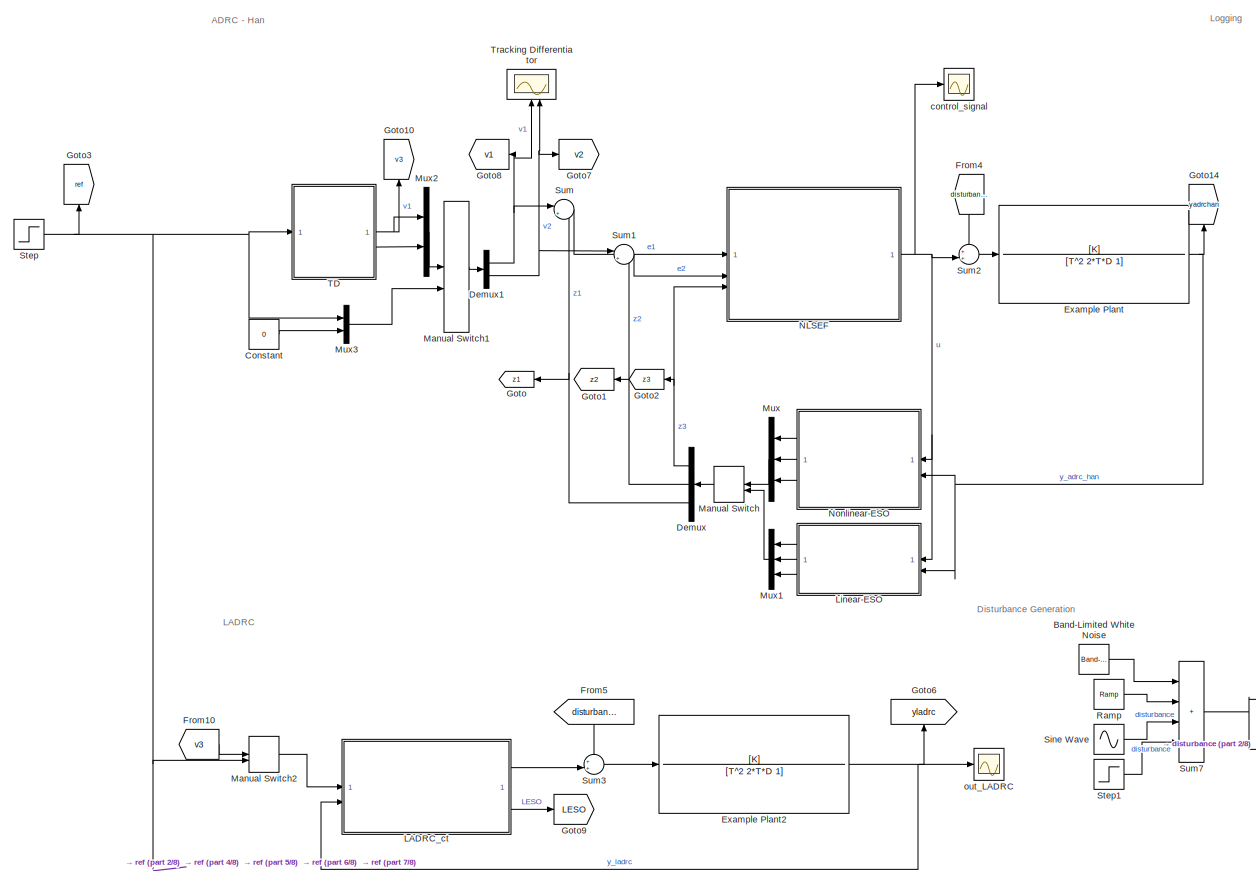
[diagram: root canvas - part 1/8, top left region]
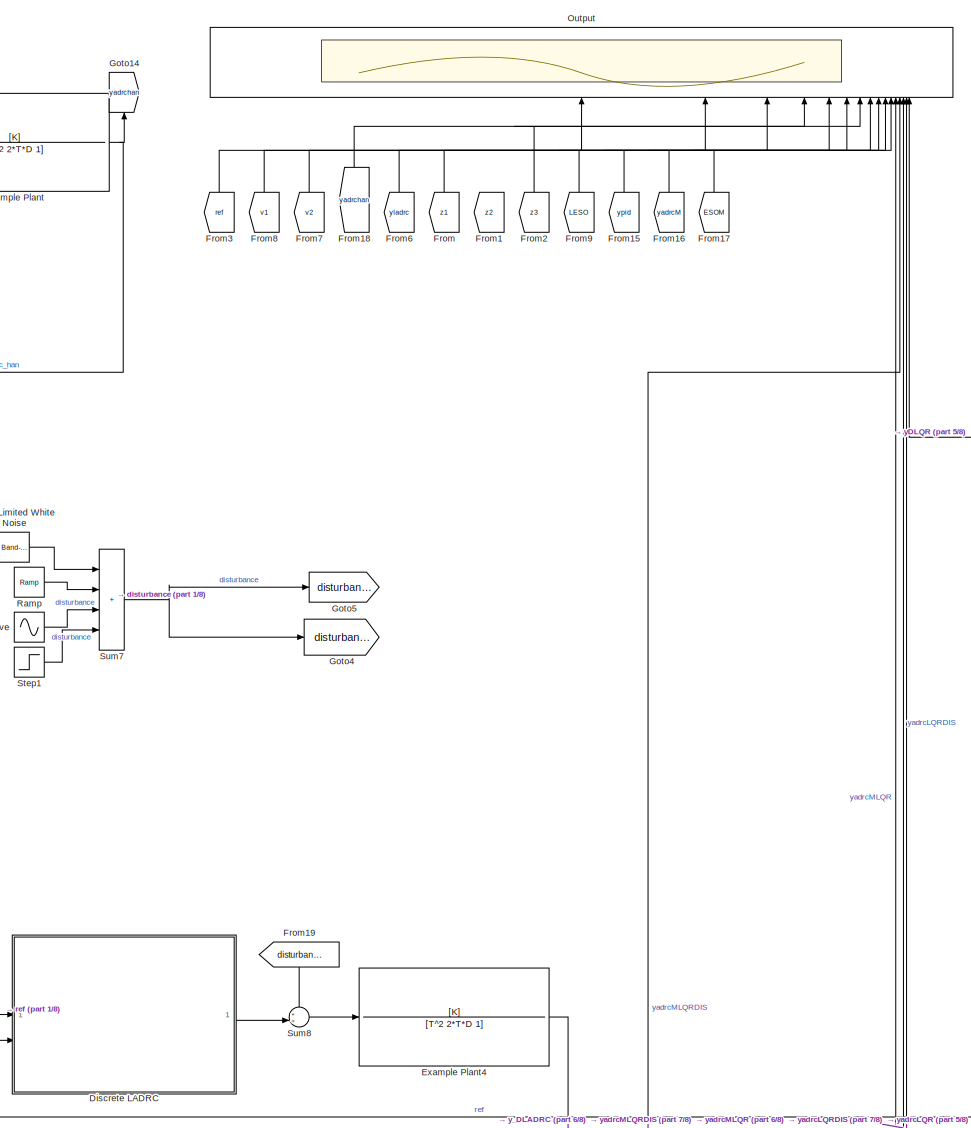
[diagram: root canvas - part 2/8, top center region]
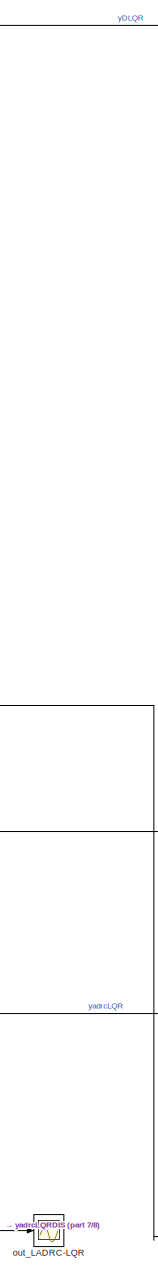
[diagram: root canvas - part 3/8, middle right region]
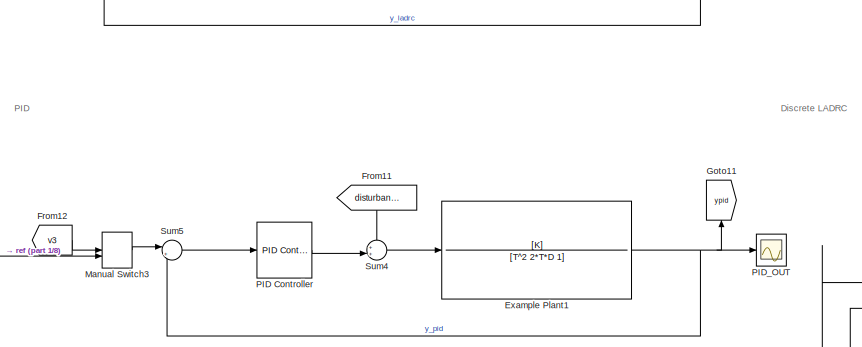
[diagram: root canvas - part 4/8, middle left region]
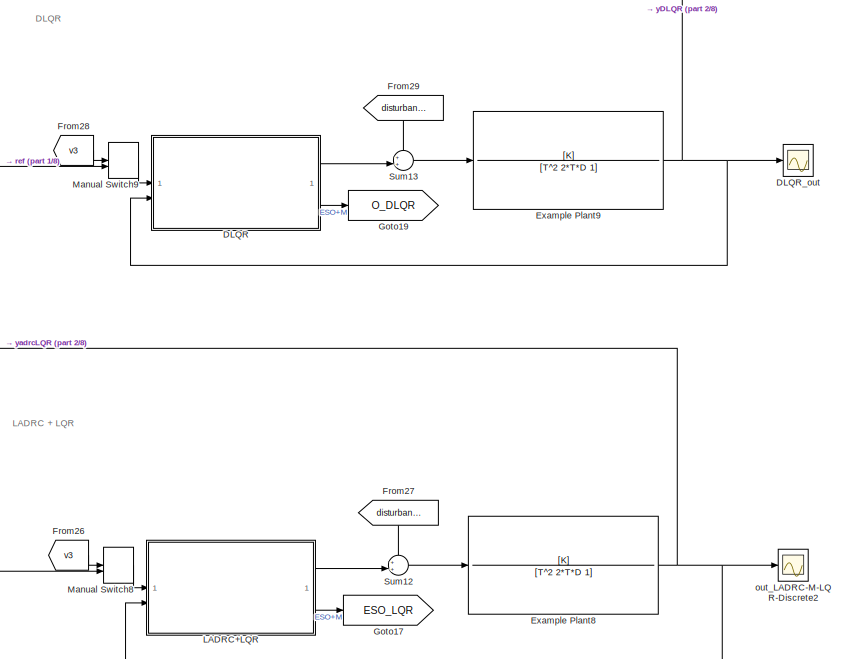
[diagram: root canvas - part 5/8, middle right region]
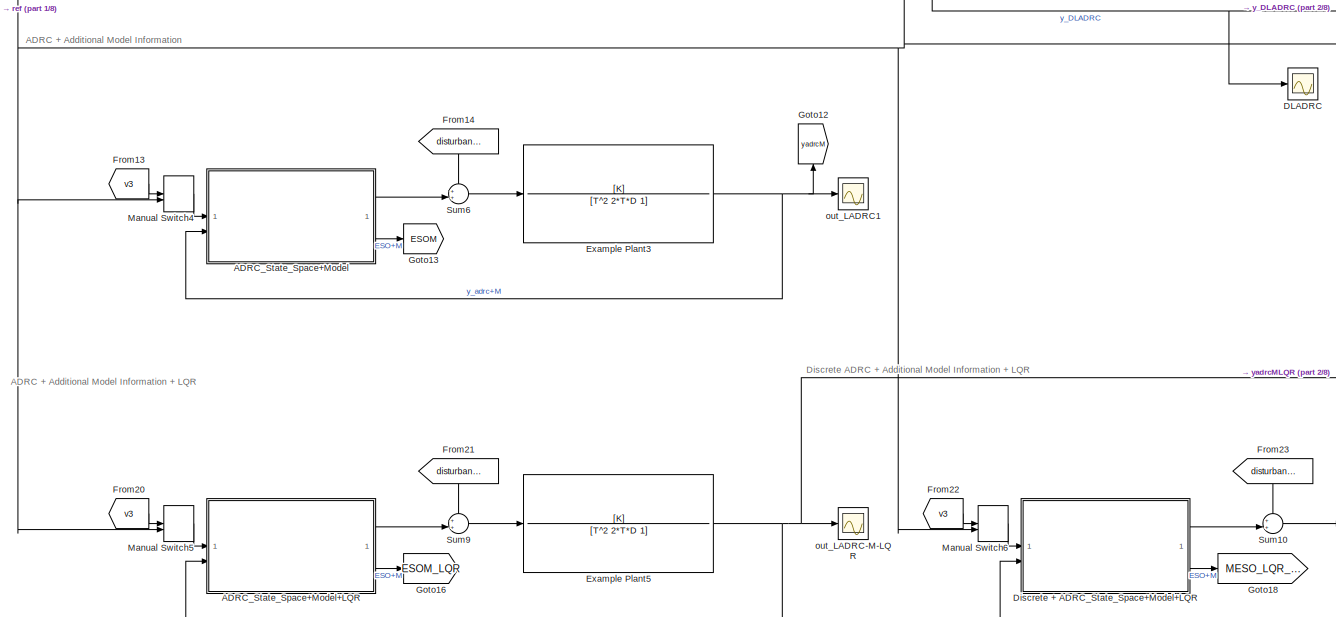
[diagram: root canvas - part 6/8, bottom left region]
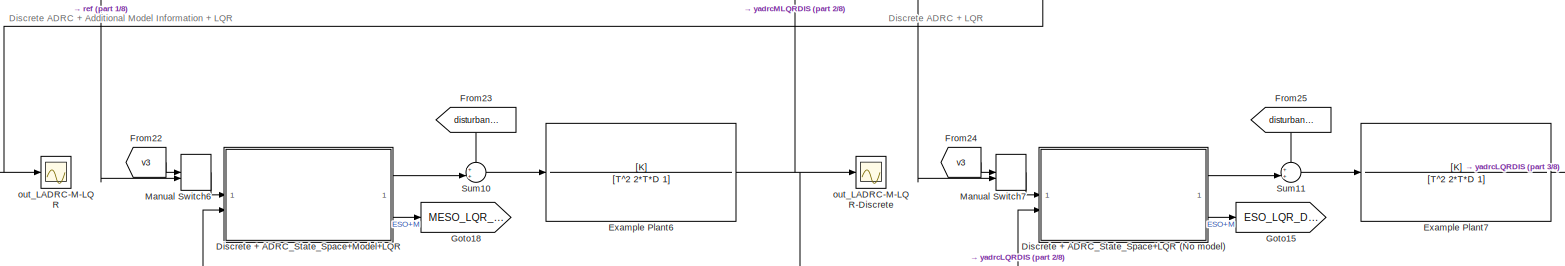
[diagram: root canvas - part 7/8, bottom center region]
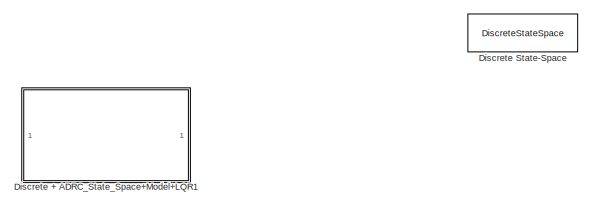
[diagram: root canvas - part 8/8, bottom center region]
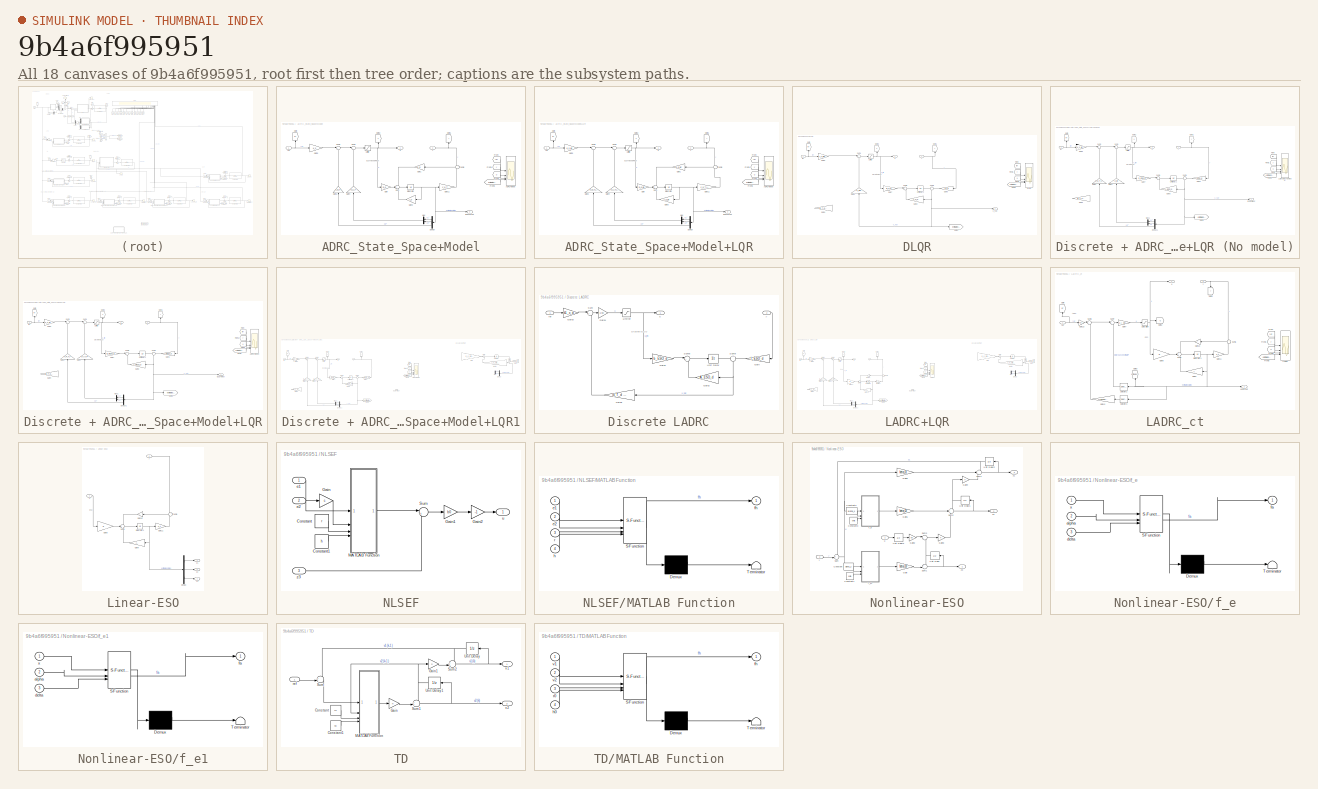
[diagram: thumbnail index - all 18 canvases of the model, root first then tree order]
MODEL slx_9b4a6f995951
KIND model
CONFIG AbsTol = auto
CONFIG EnableMultiTasking = off
CONFIG FixedStep = auto
CONFIG MaxStep = auto
CONFIG MinStep = auto
CONFIG RelTol = 1e-3
CONFIG SampleTimeConstraint = Unconstrained
CONFIG SolverName = VariableStepAuto
CONFIG StartTime = 0.0
CONFIG StopTime = 20
BLOCK [TransferFcn]  Example Plant
  Denominator = [T^2  2*T*D 1]
  Numerator = [K]
BLOCK [TransferFcn]  Example Plant1
  Denominator = [T^2  2*T*D 1]
  Numerator = [K]
BLOCK [TransferFcn]  Example Plant2
  Denominator = [T^2  2*T*D 1]
  Numerator = [K]
BLOCK [TransferFcn]  Example Plant3
  Denominator = [T^2  2*T*D 1]
  Numerator = [K]
BLOCK [TransferFcn]  Example Plant4
  Denominator = [T^2  2*T*D 1]
  Numerator = [K]
BLOCK [TransferFcn]  Example Plant5
  Denominator = [T^2  2*T*D 1]
  Numerator = [K]
BLOCK [TransferFcn]  Example Plant6
  Denominator = [T^2  2*T*D 1]
  Numerator = [K]
BLOCK [TransferFcn]  Example Plant7
  Denominator = [T^2  2*T*D 1]
  Numerator = [K]
BLOCK [TransferFcn]  Example Plant8
  Denominator = [T^2  2*T*D 1]
  Numerator = [K]
BLOCK [TransferFcn]  Example Plant9
  Denominator = [T^2  2*T*D 1]
  Numerator = [K]
BLOCK [SubSystem] ADRC_State_Space+Model
BLOCK [SubSystem] ADRC_State_Space+Model+LQR
BLOCK [Scope] ADRC_State_Space+Model+LQR/ADRC+Model
  Floating = off
  NumInputPorts = 4
  ScopeSpecificationString = Simulink.scopes.TimeScopeBlockCfg('CurrentConfiguration', extmgr.ConfigurationSet(extmgr.Configuration('Core','General UI',true),extmgr.Configuration('Core','Source UI',true),extmgr.Configuration('Sources','WiredSimulink',true),extmgr.Configuration('Visuals','Time Domain',true,'SerializedDisplays',{struct('MinYLimReal','-283.62589','MaxYLimReal','135.8643','YLabelReal','','MinYLimMag',' 0.00000','...<+1698ch>
BLOCK [Demux] ADRC_State_Space+Model+LQR/Demux
  NameLocation = top
  Outputs = N+1
BLOCK [Outport] ADRC_State_Space+Model+LQR/ESO+M - out
  Port = 2
BLOCK [From] ADRC_State_Space+Model+LQR/From
  GotoTag = ref
BLOCK [From] ADRC_State_Space+Model+LQR/From1
  GotoTag = y
BLOCK [From] ADRC_State_Space+Model+LQR/From2
  GotoTag = u
BLOCK [From] ADRC_State_Space+Model+LQR/From3
  GotoTag = estimatedstates
BLOCK [Gain] ADRC_State_Space+Model+LQR/Gain
  Gain = b_o_lqr
BLOCK [Gain] ADRC_State_Space+Model+LQR/Gain1
  Gain = k_o_lqr
  NameLocation = top
BLOCK [Gain] ADRC_State_Space+Model+LQR/Gain11
  Gain = c_o_T_lqr
  Multiplication = Matrix(K*u)
BLOCK [Gain] ADRC_State_Space+Model+LQR/Gain2
  Gain = k_d_T_lqr
  NameLocation = right
BLOCK [Gain] ADRC_State_Space+Model+LQR/Gain3
  Gain = A_o_lqr
  Multiplication = Matrix(K*u)
  NameLocation = top
BLOCK [Gain] ADRC_State_Space+Model+LQR/Gain4
  Gain = k_c_T_lqr
  Multiplication = Matrix(K*u)
  NameLocation = right
BLOCK [Gain] ADRC_State_Space+Model+LQR/Gain5
  Gain = k_s_lqr
BLOCK [Goto] ADRC_State_Space+Model+LQR/Goto
  GotoTag = ref
  NameLocation = right
BLOCK [Goto] ADRC_State_Space+Model+LQR/Goto1
  GotoTag = y
  NameLocation = right
BLOCK [Goto] ADRC_State_Space+Model+LQR/Goto2
  GotoTag = u
  NameLocation = right
BLOCK [Integrator] ADRC_State_Space+Model+LQR/Integrator
BLOCK [Saturate] ADRC_State_Space+Model+LQR/Limiter
  LowerLimit = -r
  UpperLimit = r
BLOCK [Mux] ADRC_State_Space+Model+LQR/Mux
  DisplayOption = bar
  Inputs = 2
  NameLocation = top
BLOCK [Sum] ADRC_State_Space+Model+LQR/Sum
  Inputs = +++
BLOCK [Sum] ADRC_State_Space+Model+LQR/Sum1
  Inputs = |+-
BLOCK [Sum] ADRC_State_Space+Model+LQR/Sum2
  Inputs = |+-
BLOCK [Sum] ADRC_State_Space+Model+LQR/Sum6
  Inputs = +|-
  NameLocation = top
BLOCK [Inport] ADRC_State_Space+Model+LQR/ref
BLOCK [Outport] ADRC_State_Space+Model+LQR/u
BLOCK [Inport] ADRC_State_Space+Model+LQR/y
  Port = 2
BLOCK [Scope] ADRC_State_Space+Model/ADRC+Model
  Floating = off
  NumInputPorts = 4
  ScopeSpecificationString = Simulink.scopes.TimeScopeBlockCfg('CurrentConfiguration', extmgr.ConfigurationSet(extmgr.Configuration('Core','General UI',true),extmgr.Configuration('Core','Source UI',true),extmgr.Configuration('Sources','WiredSimulink',true),extmgr.Configuration('Visuals','Time Domain',true,'SerializedDisplays',{struct('MinYLimReal','-283.62589','MaxYLimReal','135.8643','YLabelReal','','MinYLimMag',' 0.00000','...<+1698ch>
BLOCK [Demux] ADRC_State_Space+Model/Demux
  NameLocation = top
  Outputs = N+1
BLOCK [Outport] ADRC_State_Space+Model/ESO+M - out
  Port = 2
BLOCK [From] ADRC_State_Space+Model/From
  GotoTag = ref
BLOCK [From] ADRC_State_Space+Model/From1
  GotoTag = y
BLOCK [From] ADRC_State_Space+Model/From2
  GotoTag = u
BLOCK [From] ADRC_State_Space+Model/From3
  GotoTag = estimatedstates
BLOCK [Gain] ADRC_State_Space+Model/Gain
  Gain = b_o
BLOCK [Gain] ADRC_State_Space+Model/Gain1
  Gain = k_o
  NameLocation = top
BLOCK [Gain] ADRC_State_Space+Model/Gain11
  Gain = c_o_T
  Multiplication = Matrix(K*u)
BLOCK [Gain] ADRC_State_Space+Model/Gain2
  Gain = k_d_T
  NameLocation = right
BLOCK [Gain] ADRC_State_Space+Model/Gain3
  Gain = A_o
  Multiplication = Matrix(K*u)
  NameLocation = top
BLOCK [Gain] ADRC_State_Space+Model/Gain4
  Gain = k_c_T
  Multiplication = Matrix(K*u)
  NameLocation = right
BLOCK [Gain] ADRC_State_Space+Model/Gain5
  Gain = k_s
BLOCK [Goto] ADRC_State_Space+Model/Goto
  GotoTag = ref
  NameLocation = right
BLOCK [Goto] ADRC_State_Space+Model/Goto1
  GotoTag = y
  NameLocation = right
BLOCK [Goto] ADRC_State_Space+Model/Goto2
  GotoTag = u
  NameLocation = right
BLOCK [Integrator] ADRC_State_Space+Model/Integrator
BLOCK [Saturate] ADRC_State_Space+Model/Limiter
  LowerLimit = -r
  UpperLimit = r
BLOCK [Mux] ADRC_State_Space+Model/Mux
  DisplayOption = bar
  Inputs = 2
  NameLocation = top
BLOCK [Sum] ADRC_State_Space+Model/Sum
  Inputs = +++
BLOCK [Sum] ADRC_State_Space+Model/Sum1
  Inputs = |+-
BLOCK [Sum] ADRC_State_Space+Model/Sum2
  Inputs = |+-
BLOCK [Sum] ADRC_State_Space+Model/Sum6
  Inputs = +|-
  NameLocation = top
BLOCK [Inport] ADRC_State_Space+Model/ref
BLOCK [Outport] ADRC_State_Space+Model/u
BLOCK [Inport] ADRC_State_Space+Model/y
  Port = 2
BLOCK [Reference] Band-Limited White Noise  REF=simulink/Sources/Band-Limited
White Noise
  SourceBlock = simulink/Sources/Band-Limited\nWhite Noise
  SourceType = Band-Limited White Noise.
BLOCK [Constant] Constant
  Value = 0
BLOCK [Scope] DLADRC
  Floating = off
  NumInputPorts = 1
  ScopeSpecificationString = Simulink.scopes.TimeScopeBlockCfg('CurrentConfiguration', extmgr.ConfigurationSet(extmgr.Configuration('Core','General UI',true),extmgr.Configuration('Core','Source UI',true),extmgr.Configuration('Sources','WiredSimulink',true,'DataLoggingVariableName','ScopeData1'),extmgr.Configuration('Visuals','Time Domain',true,'SerializedDisplays',{struct('MinYLimReal','-0.13774','MaxYLimReal','1.23964','YLab...<+1475ch>
BLOCK [SubSystem] DLQR
BLOCK [Scope] DLQR/DLQR
  Floating = off
  NumInputPorts = 4
  ScopeSpecificationString = Simulink.scopes.TimeScopeBlockCfg('CurrentConfiguration', extmgr.ConfigurationSet(extmgr.Configuration('Core','General UI',true),extmgr.Configuration('Core','Source UI',true),extmgr.Configuration('Sources','WiredSimulink',true),extmgr.Configuration('Visuals','Time Domain',true,'SerializedDisplays',{struct('MinYLimReal','-1.30403','MaxYLimReal','2.24551','YLabelReal','','MinYLimMag','0.00000','MaxY...<+1696ch>
BLOCK [From] DLQR/From
  GotoTag = ref
BLOCK [From] DLQR/From1
  GotoTag = y
BLOCK [From] DLQR/From2
  GotoTag = u
BLOCK [From] DLQR/From3
  GotoTag = estimatedstates
BLOCK [Gain] DLQR/Gain4
  Gain = k_dlqr
  Multiplication = Matrix(K*u)
  NameLocation = right
BLOCK [Gain] DLQR/Gain5
  Gain = k_s_dlqr
BLOCK [Gain] DLQR/Gain6
  Gain = l_o_d
  NameLocation = top
BLOCK [Gain] DLQR/Gain7
  Gain = B_O_d
BLOCK [Gain] DLQR/Gain8
  Gain = A_O_d
  Multiplication = Matrix(K*u)
  NameLocation = top
BLOCK [Gain] DLQR/Gain9
  Commented = on
  Gain = [k_T_d 1]
  Multiplication = Matrix(K*u)
  NameLocation = top
BLOCK [Goto] DLQR/Goto
  GotoTag = ref
  NameLocation = right
BLOCK [Goto] DLQR/Goto1
  GotoTag = y
  NameLocation = right
BLOCK [Goto] DLQR/Goto2
  GotoTag = u
  NameLocation = right
BLOCK [Goto] DLQR/Goto3
  GotoTag = estimatedstates
BLOCK [Saturate] DLQR/Limiter
  LowerLimit = -r
  UpperLimit = r
BLOCK [Sum] DLQR/Sum1
  Inputs = |+-
BLOCK [Sum] DLQR/Sum8
  Inputs = |++
BLOCK [Sum] DLQR/Sum9
  Inputs = +|+
  NameLocation = left
BLOCK [UnitDelay] DLQR/Unit Delay1
  HasFrameUpgradeWarning = on
  SampleTime = delta_t
BLOCK [Inport] DLQR/ref
BLOCK [Outport] DLQR/u
BLOCK [Outport] DLQR/x_hat
  Port = 2
BLOCK [Inport] DLQR/y
  Port = 2
BLOCK [Scope] DLQR_out
  Floating = off
  NumInputPorts = 1
  ScopeSpecificationString = Simulink.scopes.TimeScopeBlockCfg('CurrentConfiguration', extmgr.ConfigurationSet(extmgr.Configuration('Core','General UI',true),extmgr.Configuration('Core','Source UI',true),extmgr.Configuration('Sources','WiredSimulink',true,'DataLoggingVariableName','ScopeData1'),extmgr.Configuration('Visuals','Time Domain',true,'SerializedDisplays',{struct('MinYLimReal','-0.13436','MaxYLimReal','1.20926','YLab...<+1532ch>
BLOCK [Demux] Demux
  NameLocation = top
  Outputs = 3
BLOCK [Demux] Demux1
  Outputs = 2
BLOCK [SubSystem] Discrete + ADRC_State_Space+LQR (No model)
BLOCK [Demux] Discrete + ADRC_State_Space+LQR (No model)/Demux1
  NameLocation = top
  Outputs = N+1
BLOCK [Outport] Discrete + ADRC_State_Space+LQR (No model)/ESO+M - out
  Port = 2
BLOCK [From] Discrete + ADRC_State_Space+LQR (No model)/From
  GotoTag = ref
BLOCK [From] Discrete + ADRC_State_Space+LQR (No model)/From1
  GotoTag = y
BLOCK [From] Discrete + ADRC_State_Space+LQR (No model)/From2
  GotoTag = u
BLOCK [From] Discrete + ADRC_State_Space+LQR (No model)/From3
  GotoTag = estimatedstates
BLOCK [Gain] Discrete + ADRC_State_Space+LQR (No model)/Gain2
  Gain = k_d_T_lqr
  NameLocation = right
BLOCK [Gain] Discrete + ADRC_State_Space+LQR (No model)/Gain4
  Gain = K_lqr
  Multiplication = Matrix(K*u)
  NameLocation = right
BLOCK [Gain] Discrete + ADRC_State_Space+LQR (No model)/Gain5
  Gain = K_s_lqr
BLOCK [Gain] Discrete + ADRC_State_Space+LQR (No model)/Gain6
  Gain = l_ESO_d
  NameLocation = top
BLOCK [Gain] Discrete + ADRC_State_Space+LQR (No model)/Gain7
  Gain = b_ESO_d
BLOCK [Gain] Discrete + ADRC_State_Space+LQR (No model)/Gain8
  Gain = A_ESO_d
  Multiplication = Matrix(K*u)
  NameLocation = top
BLOCK [Gain] Discrete + ADRC_State_Space+LQR (No model)/Gain9
  Commented = on
  Gain = [k_T_d 1]
  Multiplication = Matrix(K*u)
  NameLocation = top
BLOCK [Goto] Discrete + ADRC_State_Space+LQR (No model)/Goto
  GotoTag = ref
  NameLocation = right
BLOCK [Goto] Discrete + ADRC_State_Space+LQR (No model)/Goto1
  GotoTag = y
  NameLocation = right
BLOCK [Goto] Discrete + ADRC_State_Space+LQR (No model)/Goto2
  GotoTag = u
  NameLocation = right
BLOCK [Goto] Discrete + ADRC_State_Space+LQR (No model)/Goto3
  GotoTag = estimatedstates
BLOCK [Scope] Discrete + ADRC_State_Space+LQR (No model)/LQRADRC+NoModel
  Floating = off
  NumInputPorts = 4
  ScopeSpecificationString = Simulink.scopes.TimeScopeBlockCfg('CurrentConfiguration', extmgr.ConfigurationSet(extmgr.Configuration('Core','General UI',true),extmgr.Configuration('Core','Source UI',true),extmgr.Configuration('Sources','WiredSimulink',true),extmgr.Configuration('Visuals','Time Domain',true,'SerializedDisplays',{struct('MinYLimReal','-8.25334','MaxYLimReal','9.94742','YLabelReal','','MinYLimMag','0.00000','MaxY...<+1707ch>
BLOCK [Saturate] Discrete + ADRC_State_Space+LQR (No model)/Limiter
  LowerLimit = -r
  UpperLimit = r
BLOCK [Mux] Discrete + ADRC_State_Space+LQR (No model)/Mux1
  DisplayOption = bar
  Inputs = 2
  NameLocation = top
BLOCK [Sum] Discrete + ADRC_State_Space+LQR (No model)/Sum1
  Inputs = |+-
BLOCK [Sum] Discrete + ADRC_State_Space+LQR (No model)/Sum2
  Inputs = |+-
BLOCK [Sum] Discrete + ADRC_State_Space+LQR (No model)/Sum8
  Inputs = |++
BLOCK [Sum] Discrete + ADRC_State_Space+LQR (No model)/Sum9
  Inputs = +|+
  NameLocation = left
BLOCK [UnitDelay] Discrete + ADRC_State_Space+LQR (No model)/Unit Delay1
  HasFrameUpgradeWarning = on
  SampleTime = delta_t
BLOCK [Inport] Discrete + ADRC_State_Space+LQR (No model)/ref
BLOCK [Outport] Discrete + ADRC_State_Space+LQR (No model)/u
BLOCK [Inport] Discrete + ADRC_State_Space+LQR (No model)/y
  Port = 2
BLOCK [SubSystem] Discrete + ADRC_State_Space+Model+LQR
BLOCK [Scope] Discrete + ADRC_State_Space+Model+LQR/ADRC+Model
  Floating = off
  NumInputPorts = 4
  ScopeSpecificationString = Simulink.scopes.TimeScopeBlockCfg('CurrentConfiguration', extmgr.ConfigurationSet(extmgr.Configuration('Core','General UI',true),extmgr.Configuration('Core','Source UI',true),extmgr.Configuration('Sources','WiredSimulink',true),extmgr.Configuration('Visuals','Time Domain',true,'SerializedDisplays',{struct('MinYLimReal','-15.26738','MaxYLimReal','18.22703','YLabelReal','','MinYLimMag','0.00000','Ma...<+1712ch>
BLOCK [Demux] Discrete + ADRC_State_Space+Model+LQR/Demux1
  NameLocation = top
  Outputs = N+1
BLOCK [Outport] Discrete + ADRC_State_Space+Model+LQR/ESO+M - out
  Port = 2
BLOCK [From] Discrete + ADRC_State_Space+Model+LQR/From
  GotoTag = ref
BLOCK [From] Discrete + ADRC_State_Space+Model+LQR/From1
  GotoTag = y
BLOCK [From] Discrete + ADRC_State_Space+Model+LQR/From2
  GotoTag = u
BLOCK [From] Discrete + ADRC_State_Space+Model+LQR/From3
  GotoTag = estimatedstates
BLOCK [Gain] Discrete + ADRC_State_Space+Model+LQR/Gain2
  Gain = k_d_T_lqr
  NameLocation = right
BLOCK [Gain] Discrete + ADRC_State_Space+Model+LQR/Gain4
  Gain = k_c_T_dlqr
  Multiplication = Matrix(K*u)
  NameLocation = right
BLOCK [Gain] Discrete + ADRC_State_Space+Model+LQR/Gain5
  Gain = k_s_lqr
BLOCK [Gain] Discrete + ADRC_State_Space+Model+LQR/Gain6
  Gain = l_MESO_d
  NameLocation = top
BLOCK [Gain] Discrete + ADRC_State_Space+Model+LQR/Gain7
  Gain = B_MESO_d
BLOCK [Gain] Discrete + ADRC_State_Space+Model+LQR/Gain8
  Gain = A_MESO_d
  Multiplication = Matrix(K*u)
  NameLocation = top
BLOCK [Gain] Discrete + ADRC_State_Space+Model+LQR/Gain9
  Commented = on
  Gain = [k_T_d 1]
  Multiplication = Matrix(K*u)
  NameLocation = top
BLOCK [Goto] Discrete + ADRC_State_Space+Model+LQR/Goto
  GotoTag = ref
  NameLocation = right
BLOCK [Goto] Discrete + ADRC_State_Space+Model+LQR/Goto1
  GotoTag = y
  NameLocation = right
BLOCK [Goto] Discrete + ADRC_State_Space+Model+LQR/Goto2
  GotoTag = u
  NameLocation = right
BLOCK [Goto] Discrete + ADRC_State_Space+Model+LQR/Goto3
  GotoTag = estimatedstates
BLOCK [Saturate] Discrete + ADRC_State_Space+Model+LQR/Limiter
  LowerLimit = -r
  UpperLimit = r
BLOCK [Mux] Discrete + ADRC_State_Space+Model+LQR/Mux1
  DisplayOption = bar
  Inputs = 2
  NameLocation = top
BLOCK [Sum] Discrete + ADRC_State_Space+Model+LQR/Sum1
  Inputs = |+-
BLOCK [Sum] Discrete + ADRC_State_Space+Model+LQR/Sum2
  Inputs = |+-
BLOCK [Sum] Discrete + ADRC_State_Space+Model+LQR/Sum8
  Inputs = |++
BLOCK [Sum] Discrete + ADRC_State_Space+Model+LQR/Sum9
  Inputs = +|+
  NameLocation = left
BLOCK [UnitDelay] Discrete + ADRC_State_Space+Model+LQR/Unit Delay1
  HasFrameUpgradeWarning = on
  SampleTime = delta_t
BLOCK [Inport] Discrete + ADRC_State_Space+Model+LQR/ref
BLOCK [Outport] Discrete + ADRC_State_Space+Model+LQR/u
BLOCK [Inport] Discrete + ADRC_State_Space+Model+LQR/y
  Port = 2
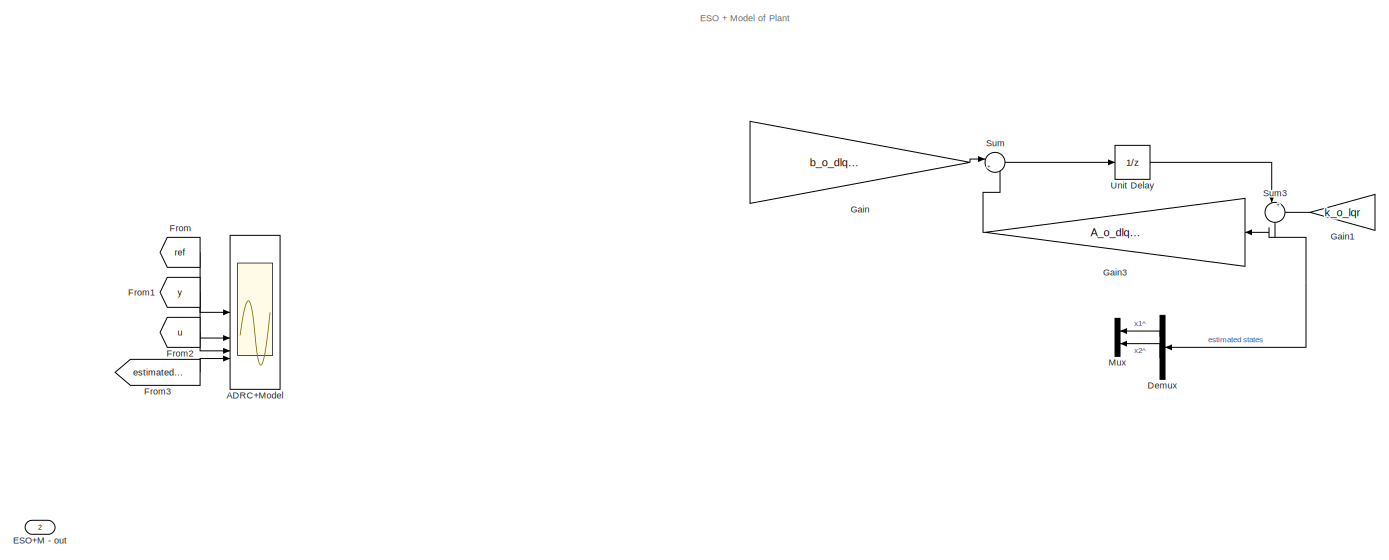
[diagram: Discrete + ADRC_State_Space+Model+LQR1 - part 1/2, middle right region]
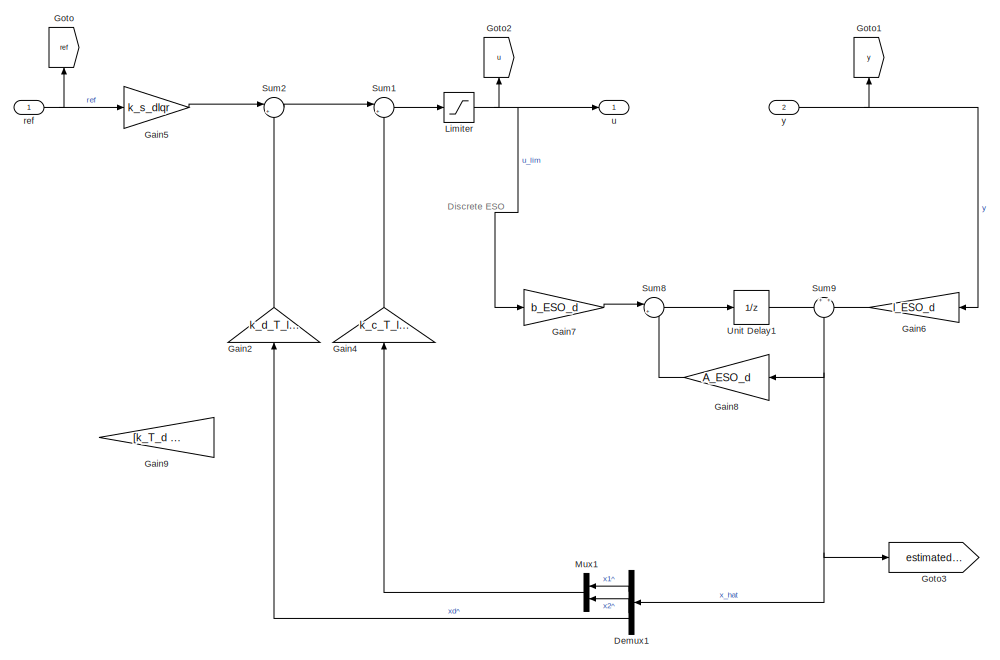
[diagram: Discrete + ADRC_State_Space+Model+LQR1 - part 2/2, left side, full height]
BLOCK [SubSystem] Discrete + ADRC_State_Space+Model+LQR1
  Commented = on
BLOCK [Scope] Discrete + ADRC_State_Space+Model+LQR1/ADRC+Model
  Floating = off
  NumInputPorts = 4
  ScopeSpecificationString = Simulink.scopes.TimeScopeBlockCfg('CurrentConfiguration', extmgr.ConfigurationSet(extmgr.Configuration('Core','General UI',true),extmgr.Configuration('Core','Source UI',true),extmgr.Configuration('Sources','WiredSimulink',true),extmgr.Configuration('Visuals','Time Domain',true,'SerializedDisplays',{struct('MinYLimReal','1.80174','MaxYLimReal','2.04103','YLabelReal','','MinYLimMag','1.80174','MaxYL...<+1648ch>
BLOCK [Demux] Discrete + ADRC_State_Space+Model+LQR1/Demux
  Commented = on
  NameLocation = top
  Outputs = N+1
BLOCK [Demux] Discrete + ADRC_State_Space+Model+LQR1/Demux1
  NameLocation = top
  Outputs = N+1
BLOCK [Outport] Discrete + ADRC_State_Space+Model+LQR1/ESO+M - out
  Port = 2
BLOCK [From] Discrete + ADRC_State_Space+Model+LQR1/From
  GotoTag = ref
BLOCK [From] Discrete + ADRC_State_Space+Model+LQR1/From1
  GotoTag = y
BLOCK [From] Discrete + ADRC_State_Space+Model+LQR1/From2
  GotoTag = u
BLOCK [From] Discrete + ADRC_State_Space+Model+LQR1/From3
  GotoTag = estimatedstates
BLOCK [Gain] Discrete + ADRC_State_Space+Model+LQR1/Gain
  Commented = on
  Gain = b_o_dlqr-k_o_lqr*c_o_T_dlqr*b_o_dlqr
BLOCK [Gain] Discrete + ADRC_State_Space+Model+LQR1/Gain1
  Commented = on
  Gain = k_o_lqr
  NameLocation = top
BLOCK [Gain] Discrete + ADRC_State_Space+Model+LQR1/Gain2
  Gain = k_d_T_lqr
  NameLocation = right
BLOCK [Gain] Discrete + ADRC_State_Space+Model+LQR1/Gain3
  Commented = on
  Gain = A_o_dlqr-k_o_lqr*c_o_T_dlqr*A_o_dlqr
  Multiplication = Matrix(K*u)
  NameLocation = top
BLOCK [Gain] Discrete + ADRC_State_Space+Model+LQR1/Gain4
  Gain = k_c_T_lqr
  Multiplication = Matrix(K*u)
  NameLocation = right
BLOCK [Gain] Discrete + ADRC_State_Space+Model+LQR1/Gain5
  Gain = k_s_dlqr
BLOCK [Gain] Discrete + ADRC_State_Space+Model+LQR1/Gain6
  Gain = l_ESO_d
  NameLocation = top
BLOCK [Gain] Discrete + ADRC_State_Space+Model+LQR1/Gain7
  Gain = b_ESO_d
BLOCK [Gain] Discrete + ADRC_State_Space+Model+LQR1/Gain8
  Gain = A_ESO_d
  Multiplication = Matrix(K*u)
  NameLocation = top
BLOCK [Gain] Discrete + ADRC_State_Space+Model+LQR1/Gain9
  Commented = on
  Gain = [k_T_d 1]
  Multiplication = Matrix(K*u)
  NameLocation = top
BLOCK [Goto] Discrete + ADRC_State_Space+Model+LQR1/Goto
  GotoTag = ref
  NameLocation = right
BLOCK [Goto] Discrete + ADRC_State_Space+Model+LQR1/Goto1
  GotoTag = y
  NameLocation = right
BLOCK [Goto] Discrete + ADRC_State_Space+Model+LQR1/Goto2
  GotoTag = u
  NameLocation = right
BLOCK [Goto] Discrete + ADRC_State_Space+Model+LQR1/Goto3
  GotoTag = estimatedstates
BLOCK [Saturate] Discrete + ADRC_State_Space+Model+LQR1/Limiter
  LowerLimit = -r
  UpperLimit = r
BLOCK [Mux] Discrete + ADRC_State_Space+Model+LQR1/Mux
  Commented = on
  DisplayOption = bar
  Inputs = 2
  NameLocation = top
BLOCK [Mux] Discrete + ADRC_State_Space+Model+LQR1/Mux1
  DisplayOption = bar
  Inputs = 2
  NameLocation = top
BLOCK [Sum] Discrete + ADRC_State_Space+Model+LQR1/Sum
  Commented = on
  Inputs = |++
BLOCK [Sum] Discrete + ADRC_State_Space+Model+LQR1/Sum1
  Inputs = |+-
BLOCK [Sum] Discrete + ADRC_State_Space+Model+LQR1/Sum2
  Inputs = |+-
BLOCK [Sum] Discrete + ADRC_State_Space+Model+LQR1/Sum3
  Commented = on
  Inputs = |++
  NameLocation = left
BLOCK [Sum] Discrete + ADRC_State_Space+Model+LQR1/Sum8
  Inputs = |++
BLOCK [Sum] Discrete + ADRC_State_Space+Model+LQR1/Sum9
  Inputs = +|+
  NameLocation = left
BLOCK [UnitDelay] Discrete + ADRC_State_Space+Model+LQR1/Unit Delay
  Commented = on
  HasFrameUpgradeWarning = on
  SampleTime = delta_t
BLOCK [UnitDelay] Discrete + ADRC_State_Space+Model+LQR1/Unit Delay1
  HasFrameUpgradeWarning = on
  SampleTime = delta_t
BLOCK [Inport] Discrete + ADRC_State_Space+Model+LQR1/ref
BLOCK [Outport] Discrete + ADRC_State_Space+Model+LQR1/u
BLOCK [Inport] Discrete + ADRC_State_Space+Model+LQR1/y
  Port = 2
BLOCK [SubSystem] Discrete LADRC
BLOCK [Gain] Discrete LADRC/Gain
  Gain = l_ESO_d
  NameLocation = top
BLOCK [Gain] Discrete LADRC/Gain1
  Gain = b_ESO_d
BLOCK [Gain] Discrete LADRC/Gain2
  Gain = A_ESO_d
  Multiplication = Matrix(K*u)
  NameLocation = top
BLOCK [Gain] Discrete LADRC/Gain3
  Gain = k1_c_d
BLOCK [Gain] Discrete LADRC/Gain4
  Gain = 1/b0
BLOCK [Gain] Discrete LADRC/Gain5
  Gain = [k_T_d 1]
  Multiplication = Matrix(K*u)
  NameLocation = top
BLOCK [Saturate] Discrete LADRC/Limiter
  LowerLimit = -r
  UpperLimit = r
BLOCK [Sum] Discrete LADRC/Sum
  Inputs = |+-
BLOCK [Sum] Discrete LADRC/Sum8
  Inputs = |++
BLOCK [Sum] Discrete LADRC/Sum9
  Inputs = +|+
  NameLocation = left
BLOCK [UnitDelay] Discrete LADRC/Unit Delay
  HasFrameUpgradeWarning = on
  SampleTime = delta_t
BLOCK [Inport] Discrete LADRC/ref
BLOCK [Outport] Discrete LADRC/u
BLOCK [Inport] Discrete LADRC/y
  Port = 2
BLOCK [DiscreteStateSpace] Discrete State-Space
  A = A_d_test
  B = B_d_test
  C = C_d_test
  Commented = on
  D = 0
  SampleTime = delta_t
BLOCK [From] From
  GotoTag = z1
  NameLocation = right
BLOCK [From] From1
  GotoTag = z2
  NameLocation = right
BLOCK [From] From10
  GotoTag = v3
BLOCK [From] From11
  GotoTag = disturbance1
  NameLocation = left
BLOCK [From] From12
  GotoTag = v3
BLOCK [From] From13
  GotoTag = v3
BLOCK [From] From14
  GotoTag = disturbance1
  NameLocation = left
BLOCK [From] From15
  GotoTag = ypid
  NameLocation = right
BLOCK [From] From16
  GotoTag = yadrcM
  NameLocation = right
BLOCK [From] From17
  GotoTag = ESOM
  NameLocation = right
BLOCK [From] From18
  GotoTag = yadrchan
  NameLocation = right
BLOCK [From] From19
  GotoTag = disturbance1
  NameLocation = left
BLOCK [From] From2
  GotoTag = z3
  NameLocation = right
BLOCK [From] From20
  GotoTag = v3
BLOCK [From] From21
  GotoTag = disturbance1
  NameLocation = left
BLOCK [From] From22
  GotoTag = v3
BLOCK [From] From23
  GotoTag = disturbance1
  NameLocation = left
BLOCK [From] From24
  GotoTag = v3
BLOCK [From] From25
  GotoTag = disturbance1
  NameLocation = left
BLOCK [From] From26
  GotoTag = v3
BLOCK [From] From27
  GotoTag = disturbance1
  NameLocation = left
BLOCK [From] From28
  GotoTag = v3
BLOCK [From] From29
  GotoTag = disturbance1
  NameLocation = left
BLOCK [From] From3
  GotoTag = ref
  NameLocation = right
BLOCK [From] From4
  GotoTag = disturbance
  NameLocation = left
BLOCK [From] From5
  GotoTag = disturbance1
  NameLocation = left
BLOCK [From] From6
  GotoTag = yladrc
  NameLocation = right
BLOCK [From] From7
  GotoTag = v2
  NameLocation = right
BLOCK [From] From8
  GotoTag = v1
  NameLocation = right
BLOCK [From] From9
  GotoTag = LESO
  NameLocation = right
BLOCK [Goto] Goto
  GotoTag = z1
  NameLocation = top
BLOCK [Goto] Goto1
  GotoTag = z2
  NameLocation = top
BLOCK [Goto] Goto10
  GotoTag = v3
  NameLocation = right
BLOCK [Goto] Goto11
  GotoTag = ypid
  NameLocation = right
BLOCK [Goto] Goto12
  GotoTag = yadrcM
  NameLocation = right
BLOCK [Goto] Goto13
  GotoTag = ESOM
BLOCK [Goto] Goto14
  GotoTag = yadrchan
  NameLocation = right
BLOCK [Goto] Goto15
  GotoTag = ESO_LQR_DIS
BLOCK [Goto] Goto16
  GotoTag = ESOM_LQR
BLOCK [Goto] Goto17
  GotoTag = ESO_LQR
BLOCK [Goto] Goto18
  GotoTag = MESO_LQR_DIS
BLOCK [Goto] Goto19
  GotoTag = O_DLQR
BLOCK [Goto] Goto2
  GotoTag = z3
  NameLocation = top
BLOCK [Goto] Goto3
  GotoTag = ref
  NameLocation = right
BLOCK [Goto] Goto4
  GotoTag = disturbance
BLOCK [Goto] Goto5
  GotoTag = disturbance1
  NameLocation = top
BLOCK [Goto] Goto6
  GotoTag = yladrc
  NameLocation = right
BLOCK [Goto] Goto7
  GotoTag = v2
BLOCK [Goto] Goto8
  GotoTag = v1
  NameLocation = top
BLOCK [Goto] Goto9
  GotoTag = LESO
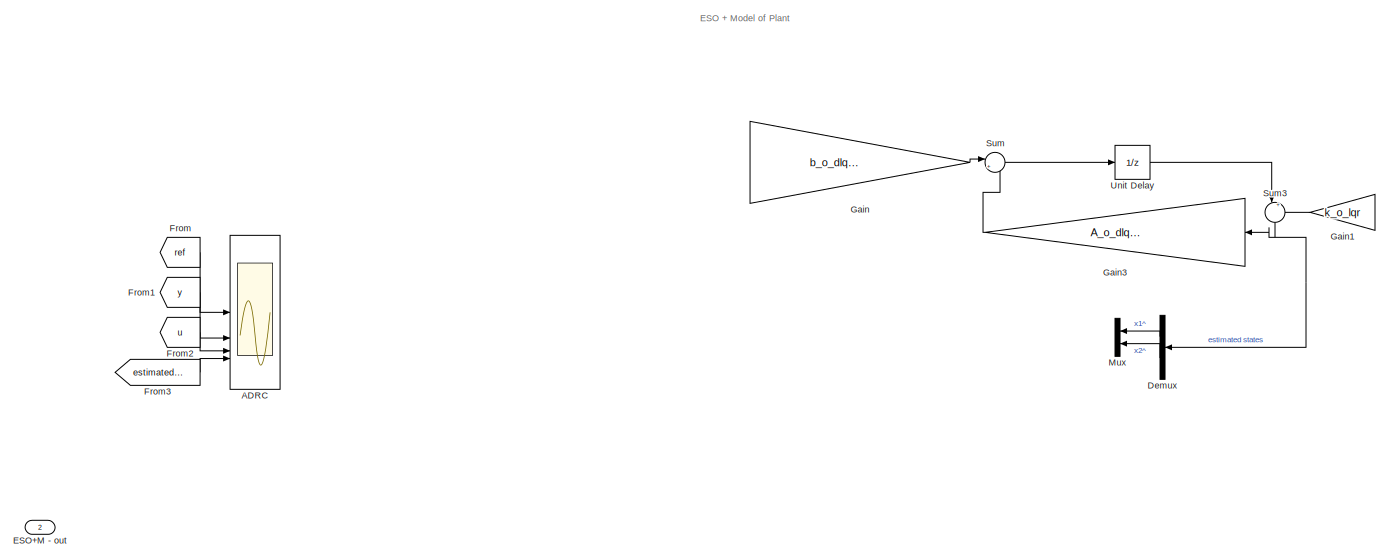
[diagram: LADRC+LQR - part 1/2, middle right region]
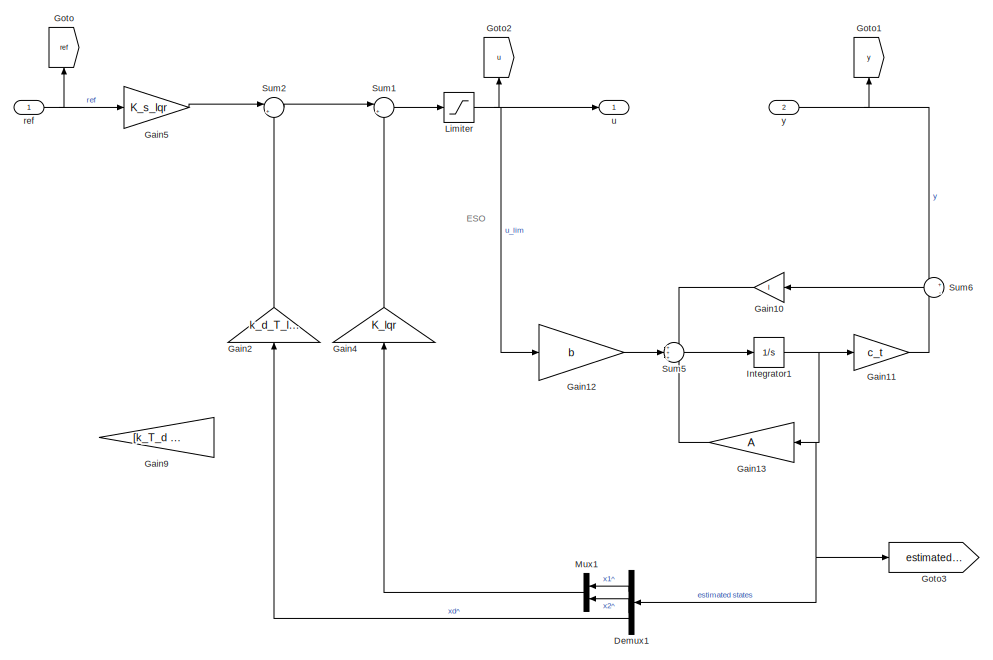
[diagram: LADRC+LQR - part 2/2, left side, full height]
BLOCK [SubSystem] LADRC+LQR
BLOCK [Scope] LADRC+LQR/ADRC
  Floating = off
  NumInputPorts = 4
  ScopeSpecificationString = Simulink.scopes.TimeScopeBlockCfg('CurrentConfiguration', extmgr.ConfigurationSet(extmgr.Configuration('Core','General UI',true),extmgr.Configuration('Core','Source UI',true),extmgr.Configuration('Sources','WiredSimulink',true),extmgr.Configuration('Visuals','Time Domain',true,'SerializedDisplays',{struct('MinYLimReal','-1.35426','MaxYLimReal','2.27337','YLabelReal','','MinYLimMag','0.00000','MaxY...<+1740ch>
BLOCK [Demux] LADRC+LQR/Demux
  Commented = on
  NameLocation = top
  Outputs = N+1
BLOCK [Demux] LADRC+LQR/Demux1
  NameLocation = top
  Outputs = N+1
BLOCK [Outport] LADRC+LQR/ESO+M - out
  Port = 2
BLOCK [From] LADRC+LQR/From
  GotoTag = ref
BLOCK [From] LADRC+LQR/From1
  GotoTag = y
BLOCK [From] LADRC+LQR/From2
  GotoTag = u
BLOCK [From] LADRC+LQR/From3
  GotoTag = estimatedstates
BLOCK [Gain] LADRC+LQR/Gain
  Commented = on
  Gain = b_o_dlqr-k_o_lqr*c_o_T_dlqr*b_o_dlqr
BLOCK [Gain] LADRC+LQR/Gain1
  Commented = on
  Gain = k_o_lqr
  NameLocation = top
BLOCK [Gain] LADRC+LQR/Gain10
  Gain = l
  NameLocation = top
BLOCK [Gain] LADRC+LQR/Gain11
  Gain = c_t
  Multiplication = Matrix(K*u)
BLOCK [Gain] LADRC+LQR/Gain12
  Gain = b
  Multiplication = Matrix(K*u)
BLOCK [Gain] LADRC+LQR/Gain13
  Gain = A
  Multiplication = Matrix(K*u)
  NameLocation = top
BLOCK [Gain] LADRC+LQR/Gain2
  Gain = k_d_T_lqr
  NameLocation = right
BLOCK [Gain] LADRC+LQR/Gain3
  Commented = on
  Gain = A_o_dlqr-k_o_lqr*c_o_T_dlqr*A_o_dlqr
  Multiplication = Matrix(K*u)
  NameLocation = top
BLOCK [Gain] LADRC+LQR/Gain4
  Gain = K_lqr
  Multiplication = Matrix(K*u)
  NameLocation = right
BLOCK [Gain] LADRC+LQR/Gain5
  Gain = K_s_lqr
BLOCK [Gain] LADRC+LQR/Gain9
  Commented = on
  Gain = [k_T_d 1]
  Multiplication = Matrix(K*u)
  NameLocation = top
BLOCK [Goto] LADRC+LQR/Goto
  GotoTag = ref
  NameLocation = right
BLOCK [Goto] LADRC+LQR/Goto1
  GotoTag = y
  NameLocation = right
BLOCK [Goto] LADRC+LQR/Goto2
  GotoTag = u
  NameLocation = right
BLOCK [Goto] LADRC+LQR/Goto3
  GotoTag = estimatedstates
BLOCK [Integrator] LADRC+LQR/Integrator1
BLOCK [Saturate] LADRC+LQR/Limiter
  LowerLimit = -r
  UpperLimit = r
BLOCK [Mux] LADRC+LQR/Mux
  Commented = on
  DisplayOption = bar
  Inputs = 2
  NameLocation = top
BLOCK [Mux] LADRC+LQR/Mux1
  DisplayOption = bar
  Inputs = 2
  NameLocation = top
BLOCK [Sum] LADRC+LQR/Sum
  Commented = on
  Inputs = |++
BLOCK [Sum] LADRC+LQR/Sum1
  Inputs = |+-
BLOCK [Sum] LADRC+LQR/Sum2
  Inputs = |+-
BLOCK [Sum] LADRC+LQR/Sum3
  Commented = on
  Inputs = |++
  NameLocation = left
BLOCK [Sum] LADRC+LQR/Sum5
  Inputs = +++
BLOCK [Sum] LADRC+LQR/Sum6
  Inputs = +|-
  NameLocation = top
BLOCK [UnitDelay] LADRC+LQR/Unit Delay
  Commented = on
  HasFrameUpgradeWarning = on
  SampleTime = delta_t
BLOCK [Inport] LADRC+LQR/ref
BLOCK [Outport] LADRC+LQR/u
BLOCK [Inport] LADRC+LQR/y
  Port = 2
BLOCK [SubSystem] LADRC_ct
BLOCK [From] LADRC_ct/From
  GotoTag = ref
BLOCK [From] LADRC_ct/From1
  GotoTag = y
BLOCK [From] LADRC_ct/From2
  GotoTag = u
BLOCK [From] LADRC_ct/From3
  GotoTag = estimatedstates
BLOCK [Gain] LADRC_ct/Gain10
  Gain = l
  NameLocation = top
BLOCK [Gain] LADRC_ct/Gain11
  Gain = c_t
  Multiplication = Matrix(K*u)
BLOCK [Gain] LADRC_ct/Gain12
  Gain = transpose(k)
  Multiplication = Matrix(K*u)
  NameLocation = top
BLOCK [Gain] LADRC_ct/Gain13
  Gain = k(1)
BLOCK [Gain] LADRC_ct/Gain7
  Gain = 1 / b0
BLOCK [Gain] LADRC_ct/Gain8
  Gain = b
  Multiplication = Matrix(K*u)
BLOCK [Gain] LADRC_ct/Gain9
  Gain = A
  Multiplication = Matrix(K*u)
  NameLocation = top
BLOCK [Goto] LADRC_ct/Goto
  GotoTag = ref
  NameLocation = right
BLOCK [Goto] LADRC_ct/Goto1
  GotoTag = y
  NameLocation = left
BLOCK [Goto] LADRC_ct/Goto2
  GotoTag = u
BLOCK [Goto] LADRC_ct/Goto3
  GotoTag = estimatedstates
  NameLocation = right
BLOCK [Integrator] LADRC_ct/Integrator1
BLOCK [Scope] LADRC_ct/LADRC
  Floating = off
  NumInputPorts = 4
  ScopeSpecificationString = Simulink.scopes.TimeScopeBlockCfg('CurrentConfiguration', extmgr.ConfigurationSet(extmgr.Configuration('Core','General UI',true),extmgr.Configuration('Core','Source UI',true),extmgr.Configuration('Sources','WiredSimulink',true),extmgr.Configuration('Visuals','Time Domain',true,'SerializedDisplays',{struct('MinYLimReal','-3.88693','MaxYLimReal','3.53357','YLabelReal','','MinYLimMag','0.00000','MaxY...<+1710ch>
BLOCK [Outport] LADRC_ct/LESO - out
  Port = 2
BLOCK [Saturate] LADRC_ct/Saturation
  LowerLimit = -r
  UpperLimit = r
BLOCK [Selector] LADRC_ct/Selector2
  IndexOptions = Index vector (dialog)
  Indices = [N+1]
  InputPortWidth = N+1
  NameLocation = top
  OutputSizes = 1
BLOCK [Selector] LADRC_ct/Selector3
  IndexOptions = Index vector (dialog)
  Indices = [1:N]
  InputPortWidth = N+1
  NameLocation = top
  OutputSizes = 1
BLOCK [Sum] LADRC_ct/Sum5
  Inputs = +++
BLOCK [Sum] LADRC_ct/Sum6
  Inputs = +|-
  NameLocation = top
BLOCK [Sum] LADRC_ct/Sum7
  Inputs = |+-
BLOCK [Sum] LADRC_ct/Sum8
  Inputs = |+-
BLOCK [Inport] LADRC_ct/ref
BLOCK [Outport] LADRC_ct/u
BLOCK [Inport] LADRC_ct/y
  Port = 2
BLOCK [SubSystem] Linear-ESO
BLOCK [Demux] Linear-ESO/Demux
  Outputs = 3
BLOCK [Gain] Linear-ESO/Gain10
  Gain = l
  NameLocation = top
BLOCK [Gain] Linear-ESO/Gain11
  Gain = c_t
  Multiplication = Matrix(K*u)
BLOCK [Gain] Linear-ESO/Gain8
  Gain = b
  Multiplication = Matrix(K*u)
BLOCK [Gain] Linear-ESO/Gain9
  Gain = A
  Multiplication = Matrix(K*u)
  NameLocation = top
BLOCK [Integrator] Linear-ESO/Integrator1
BLOCK [Sum] Linear-ESO/Sum5
  Inputs = +++
BLOCK [Sum] Linear-ESO/Sum6
  Inputs = +|-
  NameLocation = top
BLOCK [Inport] Linear-ESO/u
BLOCK [Inport] Linear-ESO/y
  Port = 2
BLOCK [Outport] Linear-ESO/z1
  Port = 3
BLOCK [Outport] Linear-ESO/z2
  Port = 2
BLOCK [Outport] Linear-ESO/z3
BLOCK [ManualSwitch] Manual Switch
  CurrentSetting = 0
  NameLocation = top
BLOCK [ManualSwitch] Manual Switch1
BLOCK [ManualSwitch] Manual Switch2
  CurrentSetting = 0
BLOCK [ManualSwitch] Manual Switch3
  CurrentSetting = 0
BLOCK [ManualSwitch] Manual Switch4
  CurrentSetting = 0
BLOCK [ManualSwitch] Manual Switch5
  CurrentSetting = 0
BLOCK [ManualSwitch] Manual Switch6
  CurrentSetting = 0
BLOCK [ManualSwitch] Manual Switch7
  CurrentSetting = 0
BLOCK [ManualSwitch] Manual Switch8
  CurrentSetting = 0
BLOCK [ManualSwitch] Manual Switch9
  CurrentSetting = 0
BLOCK [Mux] Mux
  DisplayOption = bar
  Inputs = 3
  NameLocation = top
BLOCK [Mux] Mux1
  DisplayOption = bar
  Inputs = 3
  NameLocation = top
BLOCK [Mux] Mux2
  DisplayOption = bar
  Inputs = 2
BLOCK [Mux] Mux3
  DisplayOption = bar
  Inputs = 2
BLOCK [SubSystem] NLSEF
BLOCK [Constant] NLSEF/Constant
  Value = r
BLOCK [Constant] NLSEF/Constant1
  Value = h
BLOCK [Gain] NLSEF/Gain
  Gain = c
BLOCK [Gain] NLSEF/Gain1
  Gain = b0
BLOCK [Gain] NLSEF/Gain2
  Gain = -1
BLOCK [SubSystem] NLSEF/MATLAB Function
  ErrorFcn = Stateflow.Translate.translate
  PermitHierarchicalResolution = ExplicitOnly
  SFBlockType = MATLAB Function
  SystemSampleTime = h
  TreatAsAtomicUnit = on
BLOCK [Demux] NLSEF/MATLAB Function/ Demux 
  Outputs = 1
BLOCK [S-Function] NLSEF/MATLAB Function/ SFunction 
  EnableBusSupport = on
  FunctionName = sf_sfun
  PortCounts = [4 2]
  SFcnIsStateOwnerBlock = off
  SFunctionDeploymentMode = off
  Tag = Stateflow S-Function 1
BLOCK [Terminator] NLSEF/MATLAB Function/ Terminator 
BLOCK [Inport] NLSEF/MATLAB Function/e1
BLOCK [Inport] NLSEF/MATLAB Function/e2
  Port = 2
BLOCK [Outport] NLSEF/MATLAB Function/fh
BLOCK [Inport] NLSEF/MATLAB Function/h
  Port = 4
BLOCK [Inport] NLSEF/MATLAB Function/r
  Port = 3
BLOCK [Sum] NLSEF/Sum
  Inputs = |++
BLOCK [Inport] NLSEF/e1
BLOCK [Inport] NLSEF/e2
  Port = 2
BLOCK [Outport] NLSEF/u
BLOCK [Inport] NLSEF/z3
  Port = 3
BLOCK [SubSystem] Nonlinear-ESO
  NameLocation = top
BLOCK [Constant] Nonlinear-ESO/Constant
  Value = alpha_2
BLOCK [Constant] Nonlinear-ESO/Constant1
  Value = delta
BLOCK [Constant] Nonlinear-ESO/Constant2
  Value = alpha_1
BLOCK [Constant] Nonlinear-ESO/Constant3
  Value = delta
BLOCK [Gain] Nonlinear-ESO/Gain
  Gain = beta_03
BLOCK [Gain] Nonlinear-ESO/Gain1
  Gain = beta_02
BLOCK [Gain] Nonlinear-ESO/Gain2
  Gain = b0
BLOCK [Gain] Nonlinear-ESO/Gain3
  Gain = h
BLOCK [Gain] Nonlinear-ESO/Gain4
  Gain = h
BLOCK [Gain] Nonlinear-ESO/Gain5
  Gain = beta_01
BLOCK [Sum] Nonlinear-ESO/Sum
  Inputs = +-|
BLOCK [Sum] Nonlinear-ESO/Sum1
  Inputs = +-|
BLOCK [Sum] Nonlinear-ESO/Sum2
  Inputs = +-+
BLOCK [Sum] Nonlinear-ESO/Sum3
  Inputs = |++
BLOCK [Sum] Nonlinear-ESO/Sum4
  Inputs = +-+
BLOCK [UnitDelay] Nonlinear-ESO/Unit Delay
  HasFrameUpgradeWarning = on
  NameLocation = top
  SampleTime = h
BLOCK [UnitDelay] Nonlinear-ESO/Unit Delay1
  HasFrameUpgradeWarning = on
  NameLocation = top
  SampleTime = -1
BLOCK [UnitDelay] Nonlinear-ESO/Unit Delay2
  HasFrameUpgradeWarning = on
  NameLocation = top
  SampleTime = -1
BLOCK [UnitDelay] Nonlinear-ESO/Unit Delay3
  HasFrameUpgradeWarning = on
  SampleTime = -1
BLOCK [SubSystem] Nonlinear-ESO/f_e
  ErrorFcn = Stateflow.Translate.translate
  PermitHierarchicalResolution = ExplicitOnly
  SFBlockType = MATLAB Function
  TreatAsAtomicUnit = on
BLOCK [Demux] Nonlinear-ESO/f_e/ Demux 
  Outputs = 1
BLOCK [S-Function] Nonlinear-ESO/f_e/ SFunction 
  EnableBusSupport = on
  FunctionName = sf_sfun
  PortCounts = [3 2]
  SFcnIsStateOwnerBlock = off
  SFunctionDeploymentMode = off
  Tag = Stateflow S-Function 4
BLOCK [Terminator] Nonlinear-ESO/f_e/ Terminator 
BLOCK [Inport] Nonlinear-ESO/f_e/alpha
  Port = 2
BLOCK [Inport] Nonlinear-ESO/f_e/delta
  Port = 3
BLOCK [Outport] Nonlinear-ESO/f_e/fa
BLOCK [Inport] Nonlinear-ESO/f_e/x
BLOCK [SubSystem] Nonlinear-ESO/f_e1
  ErrorFcn = Stateflow.Translate.translate
  PermitHierarchicalResolution = ExplicitOnly
  SFBlockType = MATLAB Function
  TreatAsAtomicUnit = on
BLOCK [Demux] Nonlinear-ESO/f_e1/ Demux 
  Outputs = 1
BLOCK [S-Function] Nonlinear-ESO/f_e1/ SFunction 
  EnableBusSupport = on
  FunctionName = sf_sfun
  PortCounts = [3 2]
  SFcnIsStateOwnerBlock = off
  SFunctionDeploymentMode = off
  Tag = Stateflow S-Function 3
BLOCK [Terminator] Nonlinear-ESO/f_e1/ Terminator 
BLOCK [Inport] Nonlinear-ESO/f_e1/alpha
  Port = 2
BLOCK [Inport] Nonlinear-ESO/f_e1/delta
  Port = 3
BLOCK [Outport] Nonlinear-ESO/f_e1/fa
BLOCK [Inport] Nonlinear-ESO/f_e1/x
BLOCK [Inport] Nonlinear-ESO/u
BLOCK [Inport] Nonlinear-ESO/y
  Port = 2
BLOCK [Outport] Nonlinear-ESO/z1
  Port = 3
BLOCK [Outport] Nonlinear-ESO/z2
  Port = 2
BLOCK [Outport] Nonlinear-ESO/z3
BLOCK [Scope] Output
  Floating = off
  NameLocation = right
  NumInputPorts = 16
  ScopeSpecificationString = Simulink.scopes.TimeScopeBlockCfg('CurrentConfiguration', extmgr.ConfigurationSet(extmgr.Configuration('Core','General UI',true),extmgr.Configuration('Core','Source UI',true),extmgr.Configuration('Sources','WiredSimulink',true,'DataLoggingVariableName','ScopeData1'),extmgr.Configuration('Visuals','Time Domain',true,'SerializedDisplays',{struct('MinYLimReal','0.98871','MaxYLimReal','1.03446','YLabe...<+2207ch>
BLOCK [Reference] PID Controller  REF=slpidlib/PID Controller
  LibrarySourceBlock = simulink/Continuous/PID Controller
  SourceBlock = slpidlib/PID Controller
  SourceType = PID 1dof
BLOCK [Scope] PID_OUT
  Floating = off
  NumInputPorts = 1
  ScopeSpecificationString = Simulink.scopes.TimeScopeBlockCfg('CurrentConfiguration', extmgr.ConfigurationSet(extmgr.Configuration('Core','General UI',true),extmgr.Configuration('Core','Source UI',true),extmgr.Configuration('Sources','WiredSimulink',true,'DataLoggingVariableName','ScopeData1'),extmgr.Configuration('Visuals','Time Domain',true,'SerializedDisplays',{struct('MinYLimReal','-1.3204','MaxYLimReal','3.27981','YLabe...<+1508ch>
BLOCK [Reference] Ramp  REF=simulink/Sources/Ramp
  SourceBlock = simulink/Sources/Ramp
  SourceType = Ramp
BLOCK [Sin] Sine Wave
  Amplitude = 0
  Frequency = 6
  SampleTime = 0
BLOCK [Step] Step
  SampleTime = 0
BLOCK [Step] Step1
  After = 0
  SampleTime = 0
  Time = 10
BLOCK [Sum] Sum
  Inputs = |+-
BLOCK [Sum] Sum1
  Inputs = |+-
BLOCK [Sum] Sum10
  Inputs = ++|
BLOCK [Sum] Sum11
  Inputs = ++|
BLOCK [Sum] Sum12
  Inputs = ++|
BLOCK [Sum] Sum13
  Inputs = ++|
BLOCK [Sum] Sum2
  Inputs = ++|
BLOCK [Sum] Sum3
  Inputs = ++|
BLOCK [Sum] Sum4
  Inputs = ++|
BLOCK [Sum] Sum5
  Inputs = |+-
BLOCK [Sum] Sum6
  Inputs = ++|
BLOCK [Sum] Sum7
  IconShape = rectangular
  Inputs = ++++
BLOCK [Sum] Sum8
  Inputs = ++|
BLOCK [Sum] Sum9
  Inputs = ++|
BLOCK [SubSystem] TD
BLOCK [Constant] TD/Constant
  Value = r0
BLOCK [Constant] TD/Constant1
  Value = h0
BLOCK [Gain] TD/Gain
  Gain = h
BLOCK [Gain] TD/Gain1
  Gain = h
BLOCK [SubSystem] TD/MATLAB Function
  ErrorFcn = Stateflow.Translate.translate
  PermitHierarchicalResolution = ExplicitOnly
  SFBlockType = MATLAB Function
  SystemSampleTime = h
  TreatAsAtomicUnit = on
BLOCK [Demux] TD/MATLAB Function/ Demux 
  Outputs = 1
BLOCK [S-Function] TD/MATLAB Function/ SFunction 
  EnableBusSupport = on
  FunctionName = sf_sfun
  PortCounts = [4 2]
  SFcnIsStateOwnerBlock = off
  SFunctionDeploymentMode = off
  Tag = Stateflow S-Function 2
BLOCK [Terminator] TD/MATLAB Function/ Terminator 
BLOCK [Outport] TD/MATLAB Function/fh
BLOCK [Inport] TD/MATLAB Function/h0
  Port = 4
BLOCK [Inport] TD/MATLAB Function/r0
  Port = 3
BLOCK [Inport] TD/MATLAB Function/v1
BLOCK [Inport] TD/MATLAB Function/v2
  Port = 2
BLOCK [Sum] TD/Sum
  Inputs = +-|
BLOCK [Sum] TD/Sum1
  Inputs = ++|
BLOCK [Sum] TD/Sum2
  Inputs = ++|
BLOCK [UnitDelay] TD/Unit Delay
  HasFrameUpgradeWarning = on
  NameLocation = top
  SampleTime = h
BLOCK [UnitDelay] TD/Unit Delay1
  HasFrameUpgradeWarning = on
  NameLocation = top
  SampleTime = h
BLOCK [Inport] TD/ref
BLOCK [Outport] TD/v1
BLOCK [Outport] TD/v2
  Port = 2
BLOCK [Scope] Tracking Differentiator
  Floating = off
  NameLocation = right
  NumInputPorts = 2
  ScopeSpecificationString = Simulink.scopes.TimeScopeBlockCfg('CurrentConfiguration', extmgr.ConfigurationSet(extmgr.Configuration('Core','General UI',true),extmgr.Configuration('Core','Source UI',true),extmgr.Configuration('Sources','WiredSimulink',true),extmgr.Configuration('Visuals','Time Domain',true,'SerializedDisplays',{struct('MinYLimReal','-1.30703','MaxYLimReal','2.06567','YLabelReal','','MinYLimMag','0.00000','MaxY...<+1450ch>
BLOCK [Scope] control_signal
  Floating = off
  NumInputPorts = 1
  ScopeSpecificationString = Simulink.scopes.TimeScopeBlockCfg('CurrentConfiguration', extmgr.ConfigurationSet(extmgr.Configuration('Core','General UI',true),extmgr.Configuration('Core','Source UI',true),extmgr.Configuration('Sources','WiredSimulink',true,'DataLoggingVariableName','ScopeData2'),extmgr.Configuration('Visuals','Time Domain',true,'SerializedDisplays',{struct('MinYLimReal','-13.00003','MaxYLimReal','22.37837','YL...<+1474ch>
BLOCK [Scope] out_LADRC
  Floating = off
  NumInputPorts = 1
  ScopeSpecificationString = Simulink.scopes.TimeScopeBlockCfg('CurrentConfiguration', extmgr.ConfigurationSet(extmgr.Configuration('Core','General UI',true),extmgr.Configuration('Core','Source UI',true),extmgr.Configuration('Sources','WiredSimulink',true,'DataLoggingVariableName','ScopeData3'),extmgr.Configuration('Visuals','Time Domain',true,'SerializedDisplays',{struct('MinYLimReal','-1.3204','MaxYLimReal','3.27981','YLabe...<+1508ch>
BLOCK [Scope] out_LADRC-LQR
  Floating = off
  NumInputPorts = 1
  ScopeSpecificationString = Simulink.scopes.TimeScopeBlockCfg('CurrentConfiguration', extmgr.ConfigurationSet(extmgr.Configuration('Core','General UI',true),extmgr.Configuration('Core','Source UI',true),extmgr.Configuration('Sources','WiredSimulink',true,'DataLoggingVariableName','ScopeData3'),extmgr.Configuration('Visuals','Time Domain',true,'SerializedDisplays',{struct('MinYLimReal','-0.13436','MaxYLimReal','1.20926','YLab...<+1538ch>
BLOCK [Scope] out_LADRC-M-LQR
  Floating = off
  NumInputPorts = 1
  ScopeSpecificationString = Simulink.scopes.TimeScopeBlockCfg('CurrentConfiguration', extmgr.ConfigurationSet(extmgr.Configuration('Core','General UI',true),extmgr.Configuration('Core','Source UI',true),extmgr.Configuration('Sources','WiredSimulink',true,'DataLoggingVariableName','ScopeData1'),extmgr.Configuration('Visuals','Time Domain',true,'SerializedDisplays',{struct('MinYLimReal','-0.12571','MaxYLimReal','1.13137','YLab...<+1536ch>
BLOCK [Scope] out_LADRC-M-LQR-Discrete
  Floating = off
  NumInputPorts = 1
  ScopeSpecificationString = Simulink.scopes.TimeScopeBlockCfg('CurrentConfiguration', extmgr.ConfigurationSet(extmgr.Configuration('Core','General UI',true),extmgr.Configuration('Core','Source UI',true),extmgr.Configuration('Sources','WiredSimulink',true,'DataLoggingVariableName','ScopeData2'),extmgr.Configuration('Visuals','Time Domain',true,'SerializedDisplays',{struct('MinYLimReal','-0.13436','MaxYLimReal','1.20926','YLab...<+1539ch>
BLOCK [Scope] out_LADRC-M-LQR-Discrete2
  Floating = off
  NumInputPorts = 1
  ScopeSpecificationString = Simulink.scopes.TimeScopeBlockCfg('CurrentConfiguration', extmgr.ConfigurationSet(extmgr.Configuration('Core','General UI',true),extmgr.Configuration('Core','Source UI',true),extmgr.Configuration('Sources','WiredSimulink',true,'DataLoggingVariableName','ScopeData4'),extmgr.Configuration('Visuals','Time Domain',true,'SerializedDisplays',{struct('MinYLimReal','-0.13436','MaxYLimReal','1.20926','YLab...<+1535ch>
BLOCK [Scope] out_LADRC1
  Floating = off
  NumInputPorts = 1
  ScopeSpecificationString = Simulink.scopes.TimeScopeBlockCfg('CurrentConfiguration', extmgr.ConfigurationSet(extmgr.Configuration('Core','General UI',true),extmgr.Configuration('Core','Source UI',true),extmgr.Configuration('Sources','WiredSimulink',true,'DataLoggingVariableName','ScopeData2'),extmgr.Configuration('Visuals','Time Domain',true,'SerializedDisplays',{struct('MinYLimReal','-0.12823','MaxYLimReal','1.15406','YLab...<+1511ch>
ANNOTATION (root): ADRC + Additional Model Information
ANNOTATION (root): ADRC + Additional Model Information + LQR
ANNOTATION (root): ADRC - Han
ANNOTATION (root): DLQR
ANNOTATION (root): Discrete ADRC + Additional Model Information + LQR
ANNOTATION (root): Discrete ADRC + LQR
ANNOTATION (root): Discrete LADRC
ANNOTATION (root): Disturbance Generation
ANNOTATION (root): LADRC
ANNOTATION (root): LADRC + LQR
ANNOTATION (root): Logging
ANNOTATION (root): PID
ANNOTATION ADRC_State_Space+Model: ESO + Model of Plant
ANNOTATION ADRC_State_Space+Model+LQR: ESO + Model of Plant
ANNOTATION DLQR: Discrete MESO
ANNOTATION Discrete + ADRC_State_Space+LQR (No model): Discrete ESO
ANNOTATION Discrete + ADRC_State_Space+Model+LQR: Discrete MESO
ANNOTATION Discrete + ADRC_State_Space+Model+LQR1: Discrete ESO
ANNOTATION Discrete + ADRC_State_Space+Model+LQR1: ESO + Model of Plant
ANNOTATION Discrete LADRC: Discrete ESO
ANNOTATION LADRC+LQR: ESO
ANNOTATION LADRC+LQR: ESO + Model of Plant
ANNOTATION LADRC_ct: ADRC
ANNOTATION LADRC_ct: ESO
ANNOTATION Linear-ESO: ESO
NET  Example Plant1:1 -> Goto11:1, PID_OUT:1, Sum5:2
NET  Example Plant2:1 -> Goto6:1, LADRC_ct:2, out_LADRC:1
NET  Example Plant3:1 -> ADRC_State_Space+Model:2, Goto12:1, out_LADRC1:1
NET  Example Plant4:1 -> DLADRC:1, Discrete LADRC:2
NET  Example Plant5:1 -> ADRC_State_Space+Model+LQR:2, Output:12, out_LADRC-M-LQR:1
NET  Example Plant6:1 -> Discrete + ADRC_State_Space+Model+LQR:2, Output:13, out_LADRC-M-LQR-Discrete:1
NET  Example Plant7:1 -> Discrete + ADRC_State_Space+LQR (No model):2, Output:14, out_LADRC-LQR:1
NET  Example Plant8:1 -> LADRC+LQR:2, Output:15, out_LADRC-M-LQR-Discrete2:1
NET  Example Plant9:1 -> DLQR:2, DLQR_out:1, Output:16
NET  Example Plant:1 -> Goto14:1, Linear-ESO:2, Nonlinear-ESO:2
LINE ADRC_State_Space+Model+LQR/Demux:1 -> ADRC_State_Space+Model+LQR/Mux:1
LINE ADRC_State_Space+Model+LQR/Demux:2 -> ADRC_State_Space+Model+LQR/Mux:2
LINE ADRC_State_Space+Model+LQR/Demux:3 -> ADRC_State_Space+Model+LQR/Gain2:1
LINE ADRC_State_Space+Model+LQR/From1:1 -> ADRC_State_Space+Model+LQR/ADRC+Model:2
LINE ADRC_State_Space+Model+LQR/From2:1 -> ADRC_State_Space+Model+LQR/ADRC+Model:3
LINE ADRC_State_Space+Model+LQR/From3:1 -> ADRC_State_Space+Model+LQR/ADRC+Model:4
LINE ADRC_State_Space+Model+LQR/From:1 -> ADRC_State_Space+Model+LQR/ADRC+Model:1
LINE ADRC_State_Space+Model+LQR/Gain11:1 -> ADRC_State_Space+Model+LQR/Sum6:2
LINE ADRC_State_Space+Model+LQR/Gain1:1 -> ADRC_State_Space+Model+LQR/Sum:1
LINE ADRC_State_Space+Model+LQR/Gain2:1 -> ADRC_State_Space+Model+LQR/Sum2:2
LINE ADRC_State_Space+Model+LQR/Gain3:1 -> ADRC_State_Space+Model+LQR/Sum:3
LINE ADRC_State_Space+Model+LQR/Gain4:1 -> ADRC_State_Space+Model+LQR/Sum1:2
LINE ADRC_State_Space+Model+LQR/Gain5:1 -> ADRC_State_Space+Model+LQR/Sum2:1
LINE ADRC_State_Space+Model+LQR/Gain:1 -> ADRC_State_Space+Model+LQR/Sum:2
NET ADRC_State_Space+Model+LQR/Integrator:1 -> ADRC_State_Space+Model+LQR/Demux:1, ADRC_State_Space+Model+LQR/ESO+M - out:1, ADRC_State_Space+Model+LQR/Gain11:1, ADRC_State_Space+Model+LQR/Gain3:1
NET ADRC_State_Space+Model+LQR/Limiter:1 -> ADRC_State_Space+Model+LQR/Gain:1, ADRC_State_Space+Model+LQR/Goto2:1, ADRC_State_Space+Model+LQR/u:1
LINE ADRC_State_Space+Model+LQR/Mux:1 -> ADRC_State_Space+Model+LQR/Gain4:1
LINE ADRC_State_Space+Model+LQR/Sum1:1 -> ADRC_State_Space+Model+LQR/Limiter:1
LINE ADRC_State_Space+Model+LQR/Sum2:1 -> ADRC_State_Space+Model+LQR/Sum1:1
LINE ADRC_State_Space+Model+LQR/Sum6:1 -> ADRC_State_Space+Model+LQR/Gain1:1
LINE ADRC_State_Space+Model+LQR/Sum:1 -> ADRC_State_Space+Model+LQR/Integrator:1
NET ADRC_State_Space+Model+LQR/ref:1 -> ADRC_State_Space+Model+LQR/Gain5:1, ADRC_State_Space+Model+LQR/Goto:1
NET ADRC_State_Space+Model+LQR/y:1 -> ADRC_State_Space+Model+LQR/Goto1:1, ADRC_State_Space+Model+LQR/Sum6:1
LINE ADRC_State_Space+Model+LQR:1 -> Sum9:2
LINE ADRC_State_Space+Model+LQR:2 -> Goto16:1
LINE ADRC_State_Space+Model/Demux:1 -> ADRC_State_Space+Model/Mux:1
LINE ADRC_State_Space+Model/Demux:2 -> ADRC_State_Space+Model/Mux:2
LINE ADRC_State_Space+Model/Demux:3 -> ADRC_State_Space+Model/Gain2:1
LINE ADRC_State_Space+Model/From1:1 -> ADRC_State_Space+Model/ADRC+Model:2
LINE ADRC_State_Space+Model/From2:1 -> ADRC_State_Space+Model/ADRC+Model:3
LINE ADRC_State_Space+Model/From3:1 -> ADRC_State_Space+Model/ADRC+Model:4
LINE ADRC_State_Space+Model/From:1 -> ADRC_State_Space+Model/ADRC+Model:1
LINE ADRC_State_Space+Model/Gain11:1 -> ADRC_State_Space+Model/Sum6:2
LINE ADRC_State_Space+Model/Gain1:1 -> ADRC_State_Space+Model/Sum:1
LINE ADRC_State_Space+Model/Gain2:1 -> ADRC_State_Space+Model/Sum2:2
LINE ADRC_State_Space+Model/Gain3:1 -> ADRC_State_Space+Model/Sum:3
LINE ADRC_State_Space+Model/Gain4:1 -> ADRC_State_Space+Model/Sum1:2
LINE ADRC_State_Space+Model/Gain5:1 -> ADRC_State_Space+Model/Sum2:1
LINE ADRC_State_Space+Model/Gain:1 -> ADRC_State_Space+Model/Sum:2
NET ADRC_State_Space+Model/Integrator:1 -> ADRC_State_Space+Model/Demux:1, ADRC_State_Space+Model/ESO+M - out:1, ADRC_State_Space+Model/Gain11:1, ADRC_State_Space+Model/Gain3:1
NET ADRC_State_Space+Model/Limiter:1 -> ADRC_State_Space+Model/Gain:1, ADRC_State_Space+Model/Goto2:1, ADRC_State_Space+Model/u:1
LINE ADRC_State_Space+Model/Mux:1 -> ADRC_State_Space+Model/Gain4:1
LINE ADRC_State_Space+Model/Sum1:1 -> ADRC_State_Space+Model/Limiter:1
LINE ADRC_State_Space+Model/Sum2:1 -> ADRC_State_Space+Model/Sum1:1
LINE ADRC_State_Space+Model/Sum6:1 -> ADRC_State_Space+Model/Gain1:1
LINE ADRC_State_Space+Model/Sum:1 -> ADRC_State_Space+Model/Integrator:1
NET ADRC_State_Space+Model/ref:1 -> ADRC_State_Space+Model/Gain5:1, ADRC_State_Space+Model/Goto:1
NET ADRC_State_Space+Model/y:1 -> ADRC_State_Space+Model/Goto1:1, ADRC_State_Space+Model/Sum6:1
LINE ADRC_State_Space+Model:1 -> Sum6:2
LINE ADRC_State_Space+Model:2 -> Goto13:1
LINE Band-Limited White Noise:1 -> Sum7:1
LINE Constant:1 -> Mux3:2
LINE DLQR/From1:1 -> DLQR/DLQR:2
LINE DLQR/From2:1 -> DLQR/DLQR:3
LINE DLQR/From3:1 -> DLQR/DLQR:4
LINE DLQR/From:1 -> DLQR/DLQR:1
LINE DLQR/Gain4:1 -> DLQR/Sum1:2
LINE DLQR/Gain5:1 -> DLQR/Sum1:1
LINE DLQR/Gain6:1 -> DLQR/Sum9:2
LINE DLQR/Gain7:1 -> DLQR/Sum8:1
LINE DLQR/Gain8:1 -> DLQR/Sum8:2
NET DLQR/Limiter:1 -> DLQR/Gain7:1, DLQR/Goto2:1, DLQR/u:1
LINE DLQR/Sum1:1 -> DLQR/Limiter:1
LINE DLQR/Sum8:1 -> DLQR/Unit Delay1:1
NET DLQR/Sum9:1 -> DLQR/Gain4:1, DLQR/Gain8:1, DLQR/Goto3:1, DLQR/x_hat:1
LINE DLQR/Unit Delay1:1 -> DLQR/Sum9:1
NET DLQR/ref:1 -> DLQR/Gain5:1, DLQR/Goto:1
NET DLQR/y:1 -> DLQR/Gain6:1, DLQR/Goto1:1
LINE DLQR:1 -> Sum13:2
LINE DLQR:2 -> Goto19:1
NET Demux1:1 -> Goto8:1, Sum:1, Tracking Differentiator:1
NET Demux1:2 -> Goto7:1, Sum1:1, Tracking Differentiator:2
NET Demux:1 -> Goto2:1, NLSEF:3
NET Demux:2 -> Goto1:1, Sum1:2
NET Demux:3 -> Goto:1, Sum:2
LINE Discrete + ADRC_State_Space+LQR (No model)/Demux1:1 -> Discrete + ADRC_State_Space+LQR (No model)/Mux1:1
LINE Discrete + ADRC_State_Space+LQR (No model)/Demux1:2 -> Discrete + ADRC_State_Space+LQR (No model)/Mux1:2
LINE Discrete + ADRC_State_Space+LQR (No model)/Demux1:3 -> Discrete + ADRC_State_Space+LQR (No model)/Gain2:1
LINE Discrete + ADRC_State_Space+LQR (No model)/From1:1 -> Discrete + ADRC_State_Space+LQR (No model)/LQRADRC+NoModel:2
LINE Discrete + ADRC_State_Space+LQR (No model)/From2:1 -> Discrete + ADRC_State_Space+LQR (No model)/LQRADRC+NoModel:3
LINE Discrete + ADRC_State_Space+LQR (No model)/From3:1 -> Discrete + ADRC_State_Space+LQR (No model)/LQRADRC+NoModel:4
LINE Discrete + ADRC_State_Space+LQR (No model)/From:1 -> Discrete + ADRC_State_Space+LQR (No model)/LQRADRC+NoModel:1
LINE Discrete + ADRC_State_Space+LQR (No model)/Gain2:1 -> Discrete + ADRC_State_Space+LQR (No model)/Sum2:2
LINE Discrete + ADRC_State_Space+LQR (No model)/Gain4:1 -> Discrete + ADRC_State_Space+LQR (No model)/Sum1:2
LINE Discrete + ADRC_State_Space+LQR (No model)/Gain5:1 -> Discrete + ADRC_State_Space+LQR (No model)/Sum2:1
LINE Discrete + ADRC_State_Space+LQR (No model)/Gain6:1 -> Discrete + ADRC_State_Space+LQR (No model)/Sum9:2
LINE Discrete + ADRC_State_Space+LQR (No model)/Gain7:1 -> Discrete + ADRC_State_Space+LQR (No model)/Sum8:1
LINE Discrete + ADRC_State_Space+LQR (No model)/Gain8:1 -> Discrete + ADRC_State_Space+LQR (No model)/Sum8:2
NET Discrete + ADRC_State_Space+LQR (No model)/Limiter:1 -> Discrete + ADRC_State_Space+LQR (No model)/Gain7:1, Discrete + ADRC_State_Space+LQR (No model)/Goto2:1, Discrete + ADRC_State_Space+LQR (No model)/u:1
LINE Discrete + ADRC_State_Space+LQR (No model)/Mux1:1 -> Discrete + ADRC_State_Space+LQR (No model)/Gain4:1
LINE Discrete + ADRC_State_Space+LQR (No model)/Sum1:1 -> Discrete + ADRC_State_Space+LQR (No model)/Limiter:1
LINE Discrete + ADRC_State_Space+LQR (No model)/Sum2:1 -> Discrete + ADRC_State_Space+LQR (No model)/Sum1:1
LINE Discrete + ADRC_State_Space+LQR (No model)/Sum8:1 -> Discrete + ADRC_State_Space+LQR (No model)/Unit Delay1:1
NET Discrete + ADRC_State_Space+LQR (No model)/Sum9:1 -> Discrete + ADRC_State_Space+LQR (No model)/Demux1:1, Discrete + ADRC_State_Space+LQR (No model)/ESO+M - out:1, Discrete + ADRC_State_Space+LQR (No model)/Gain8:1, Discrete + ADRC_State_Space+LQR (No model)/Goto3:1
LINE Discrete + ADRC_State_Space+LQR (No model)/Unit Delay1:1 -> Discrete + ADRC_State_Space+LQR (No model)/Sum9:1
NET Discrete + ADRC_State_Space+LQR (No model)/ref:1 -> Discrete + ADRC_State_Space+LQR (No model)/Gain5:1, Discrete + ADRC_State_Space+LQR (No model)/Goto:1
NET Discrete + ADRC_State_Space+LQR (No model)/y:1 -> Discrete + ADRC_State_Space+LQR (No model)/Gain6:1, Discrete + ADRC_State_Space+LQR (No model)/Goto1:1
LINE Discrete + ADRC_State_Space+LQR (No model):1 -> Sum11:2
LINE Discrete + ADRC_State_Space+LQR (No model):2 -> Goto15:1
LINE Discrete + ADRC_State_Space+Model+LQR/Demux1:1 -> Discrete + ADRC_State_Space+Model+LQR/Mux1:1
LINE Discrete + ADRC_State_Space+Model+LQR/Demux1:2 -> Discrete + ADRC_State_Space+Model+LQR/Mux1:2
LINE Discrete + ADRC_State_Space+Model+LQR/Demux1:3 -> Discrete + ADRC_State_Space+Model+LQR/Gain2:1
LINE Discrete + ADRC_State_Space+Model+LQR/From1:1 -> Discrete + ADRC_State_Space+Model+LQR/ADRC+Model:2
LINE Discrete + ADRC_State_Space+Model+LQR/From2:1 -> Discrete + ADRC_State_Space+Model+LQR/ADRC+Model:3
LINE Discrete + ADRC_State_Space+Model+LQR/From3:1 -> Discrete + ADRC_State_Space+Model+LQR/ADRC+Model:4
LINE Discrete + ADRC_State_Space+Model+LQR/From:1 -> Discrete + ADRC_State_Space+Model+LQR/ADRC+Model:1
LINE Discrete + ADRC_State_Space+Model+LQR/Gain2:1 -> Discrete + ADRC_State_Space+Model+LQR/Sum2:2
LINE Discrete + ADRC_State_Space+Model+LQR/Gain4:1 -> Discrete + ADRC_State_Space+Model+LQR/Sum1:2
LINE Discrete + ADRC_State_Space+Model+LQR/Gain5:1 -> Discrete + ADRC_State_Space+Model+LQR/Sum2:1
LINE Discrete + ADRC_State_Space+Model+LQR/Gain6:1 -> Discrete + ADRC_State_Space+Model+LQR/Sum9:2
LINE Discrete + ADRC_State_Space+Model+LQR/Gain7:1 -> Discrete + ADRC_State_Space+Model+LQR/Sum8:1
LINE Discrete + ADRC_State_Space+Model+LQR/Gain8:1 -> Discrete + ADRC_State_Space+Model+LQR/Sum8:2
NET Discrete + ADRC_State_Space+Model+LQR/Limiter:1 -> Discrete + ADRC_State_Space+Model+LQR/Gain7:1, Discrete + ADRC_State_Space+Model+LQR/Goto2:1, Discrete + ADRC_State_Space+Model+LQR/u:1
LINE Discrete + ADRC_State_Space+Model+LQR/Mux1:1 -> Discrete + ADRC_State_Space+Model+LQR/Gain4:1
LINE Discrete + ADRC_State_Space+Model+LQR/Sum1:1 -> Discrete + ADRC_State_Space+Model+LQR/Limiter:1
LINE Discrete + ADRC_State_Space+Model+LQR/Sum2:1 -> Discrete + ADRC_State_Space+Model+LQR/Sum1:1
LINE Discrete + ADRC_State_Space+Model+LQR/Sum8:1 -> Discrete + ADRC_State_Space+Model+LQR/Unit Delay1:1
NET Discrete + ADRC_State_Space+Model+LQR/Sum9:1 -> Discrete + ADRC_State_Space+Model+LQR/Demux1:1, Discrete + ADRC_State_Space+Model+LQR/ESO+M - out:1, Discrete + ADRC_State_Space+Model+LQR/Gain8:1, Discrete + ADRC_State_Space+Model+LQR/Goto3:1
LINE Discrete + ADRC_State_Space+Model+LQR/Unit Delay1:1 -> Discrete + ADRC_State_Space+Model+LQR/Sum9:1
NET Discrete + ADRC_State_Space+Model+LQR/ref:1 -> Discrete + ADRC_State_Space+Model+LQR/Gain5:1, Discrete + ADRC_State_Space+Model+LQR/Goto:1
NET Discrete + ADRC_State_Space+Model+LQR/y:1 -> Discrete + ADRC_State_Space+Model+LQR/Gain6:1, Discrete + ADRC_State_Space+Model+LQR/Goto1:1
LINE Discrete + ADRC_State_Space+Model+LQR1/Demux1:1 -> Discrete + ADRC_State_Space+Model+LQR1/Mux1:1
LINE Discrete + ADRC_State_Space+Model+LQR1/Demux1:2 -> Discrete + ADRC_State_Space+Model+LQR1/Mux1:2
LINE Discrete + ADRC_State_Space+Model+LQR1/Demux1:3 -> Discrete + ADRC_State_Space+Model+LQR1/Gain2:1
LINE Discrete + ADRC_State_Space+Model+LQR1/Demux:1 -> Discrete + ADRC_State_Space+Model+LQR1/Mux:1
LINE Discrete + ADRC_State_Space+Model+LQR1/Demux:2 -> Discrete + ADRC_State_Space+Model+LQR1/Mux:2
LINE Discrete + ADRC_State_Space+Model+LQR1/From1:1 -> Discrete + ADRC_State_Space+Model+LQR1/ADRC+Model:2
LINE Discrete + ADRC_State_Space+Model+LQR1/From2:1 -> Discrete + ADRC_State_Space+Model+LQR1/ADRC+Model:3
LINE Discrete + ADRC_State_Space+Model+LQR1/From3:1 -> Discrete + ADRC_State_Space+Model+LQR1/ADRC+Model:4
LINE Discrete + ADRC_State_Space+Model+LQR1/From:1 -> Discrete + ADRC_State_Space+Model+LQR1/ADRC+Model:1
LINE Discrete + ADRC_State_Space+Model+LQR1/Gain1:1 -> Discrete + ADRC_State_Space+Model+LQR1/Sum3:2
LINE Discrete + ADRC_State_Space+Model+LQR1/Gain2:1 -> Discrete + ADRC_State_Space+Model+LQR1/Sum2:2
LINE Discrete + ADRC_State_Space+Model+LQR1/Gain3:1 -> Discrete + ADRC_State_Space+Model+LQR1/Sum:2
LINE Discrete + ADRC_State_Space+Model+LQR1/Gain4:1 -> Discrete + ADRC_State_Space+Model+LQR1/Sum1:2
LINE Discrete + ADRC_State_Space+Model+LQR1/Gain5:1 -> Discrete + ADRC_State_Space+Model+LQR1/Sum2:1
LINE Discrete + ADRC_State_Space+Model+LQR1/Gain6:1 -> Discrete + ADRC_State_Space+Model+LQR1/Sum9:2
LINE Discrete + ADRC_State_Space+Model+LQR1/Gain7:1 -> Discrete + ADRC_State_Space+Model+LQR1/Sum8:1
LINE Discrete + ADRC_State_Space+Model+LQR1/Gain8:1 -> Discrete + ADRC_State_Space+Model+LQR1/Sum8:2
LINE Discrete + ADRC_State_Space+Model+LQR1/Gain:1 -> Discrete + ADRC_State_Space+Model+LQR1/Sum:1
NET Discrete + ADRC_State_Space+Model+LQR1/Limiter:1 -> Discrete + ADRC_State_Space+Model+LQR1/Gain7:1, Discrete + ADRC_State_Space+Model+LQR1/Goto2:1, Discrete + ADRC_State_Space+Model+LQR1/u:1
LINE Discrete + ADRC_State_Space+Model+LQR1/Mux1:1 -> Discrete + ADRC_State_Space+Model+LQR1/Gain4:1
LINE Discrete + ADRC_State_Space+Model+LQR1/Sum1:1 -> Discrete + ADRC_State_Space+Model+LQR1/Limiter:1
LINE Discrete + ADRC_State_Space+Model+LQR1/Sum2:1 -> Discrete + ADRC_State_Space+Model+LQR1/Sum1:1
NET Discrete + ADRC_State_Space+Model+LQR1/Sum3:1 -> Discrete + ADRC_State_Space+Model+LQR1/Demux:1, Discrete + ADRC_State_Space+Model+LQR1/Gain3:1
LINE Discrete + ADRC_State_Space+Model+LQR1/Sum8:1 -> Discrete + ADRC_State_Space+Model+LQR1/Unit Delay1:1
NET Discrete + ADRC_State_Space+Model+LQR1/Sum9:1 -> Discrete + ADRC_State_Space+Model+LQR1/Demux1:1, Discrete + ADRC_State_Space+Model+LQR1/Gain8:1, Discrete + ADRC_State_Space+Model+LQR1/Goto3:1
LINE Discrete + ADRC_State_Space+Model+LQR1/Sum:1 -> Discrete + ADRC_State_Space+Model+LQR1/Unit Delay:1
LINE Discrete + ADRC_State_Space+Model+LQR1/Unit Delay1:1 -> Discrete + ADRC_State_Space+Model+LQR1/Sum9:1
LINE Discrete + ADRC_State_Space+Model+LQR1/Unit Delay:1 -> Discrete + ADRC_State_Space+Model+LQR1/Sum3:1
NET Discrete + ADRC_State_Space+Model+LQR1/ref:1 -> Discrete + ADRC_State_Space+Model+LQR1/Gain5:1, Discrete + ADRC_State_Space+Model+LQR1/Goto:1
NET Discrete + ADRC_State_Space+Model+LQR1/y:1 -> Discrete + ADRC_State_Space+Model+LQR1/Gain6:1, Discrete + ADRC_State_Space+Model+LQR1/Goto1:1
LINE Discrete + ADRC_State_Space+Model+LQR:1 -> Sum10:2
LINE Discrete + ADRC_State_Space+Model+LQR:2 -> Goto18:1
LINE Discrete LADRC/Gain1:1 -> Discrete LADRC/Sum8:1
LINE Discrete LADRC/Gain2:1 -> Discrete LADRC/Sum8:2
LINE Discrete LADRC/Gain3:1 -> Discrete LADRC/Sum:1
LINE Discrete LADRC/Gain4:1 -> Discrete LADRC/Limiter:1
LINE Discrete LADRC/Gain5:1 -> Discrete LADRC/Sum:2
LINE Discrete LADRC/Gain:1 -> Discrete LADRC/Sum9:2
NET Discrete LADRC/Limiter:1 -> Discrete LADRC/Gain1:1, Discrete LADRC/u:1
LINE Discrete LADRC/Sum8:1 -> Discrete LADRC/Unit Delay:1
NET Discrete LADRC/Sum9:1 -> Discrete LADRC/Gain2:1, Discrete LADRC/Gain5:1
LINE Discrete LADRC/Sum:1 -> Discrete LADRC/Gain4:1
LINE Discrete LADRC/Unit Delay:1 -> Discrete LADRC/Sum9:1
LINE Discrete LADRC/ref:1 -> Discrete LADRC/Gain3:1
LINE Discrete LADRC/y:1 -> Discrete LADRC/Gain:1
LINE Discrete LADRC:1 -> Sum8:2
LINE From10:1 -> Manual Switch2:1
LINE From11:1 -> Sum4:1
LINE From12:1 -> Manual Switch3:1
LINE From13:1 -> Manual Switch4:1
LINE From14:1 -> Sum6:1
LINE From15:1 -> Output:9
LINE From16:1 -> Output:10
LINE From17:1 -> Output:11
LINE From18:1 -> Output:4
LINE From19:1 -> Sum8:1
LINE From20:1 -> Manual Switch5:1
LINE From21:1 -> Sum9:1
LINE From22:1 -> Manual Switch6:1
LINE From23:1 -> Sum10:1
LINE From24:1 -> Manual Switch7:1
LINE From25:1 -> Sum11:1
LINE From26:1 -> Manual Switch8:1
LINE From27:1 -> Sum12:1
LINE From28:1 -> Manual Switch9:1
LINE From29:1 -> Sum13:1
LINE From2:1 -> Output:7
LINE From3:1 -> Output:1
LINE From4:1 -> Sum2:1
LINE From5:1 -> Sum3:1
LINE From6:1 -> Output:5
LINE From7:1 -> Output:3
LINE From8:1 -> Output:2
LINE From9:1 -> Output:8
LINE From:1 -> Output:6
LINE LADRC+LQR/Demux1:1 -> LADRC+LQR/Mux1:1
LINE LADRC+LQR/Demux1:2 -> LADRC+LQR/Mux1:2
LINE LADRC+LQR/Demux1:3 -> LADRC+LQR/Gain2:1
LINE LADRC+LQR/Demux:1 -> LADRC+LQR/Mux:1
LINE LADRC+LQR/Demux:2 -> LADRC+LQR/Mux:2
LINE LADRC+LQR/From1:1 -> LADRC+LQR/ADRC:2
LINE LADRC+LQR/From2:1 -> LADRC+LQR/ADRC:3
LINE LADRC+LQR/From3:1 -> LADRC+LQR/ADRC:4
LINE LADRC+LQR/From:1 -> LADRC+LQR/ADRC:1
LINE LADRC+LQR/Gain10:1 -> LADRC+LQR/Sum5:1
LINE LADRC+LQR/Gain11:1 -> LADRC+LQR/Sum6:2
LINE LADRC+LQR/Gain12:1 -> LADRC+LQR/Sum5:2
LINE LADRC+LQR/Gain13:1 -> LADRC+LQR/Sum5:3
LINE LADRC+LQR/Gain1:1 -> LADRC+LQR/Sum3:2
LINE LADRC+LQR/Gain2:1 -> LADRC+LQR/Sum2:2
LINE LADRC+LQR/Gain3:1 -> LADRC+LQR/Sum:2
LINE LADRC+LQR/Gain4:1 -> LADRC+LQR/Sum1:2
LINE LADRC+LQR/Gain5:1 -> LADRC+LQR/Sum2:1
LINE LADRC+LQR/Gain:1 -> LADRC+LQR/Sum:1
NET LADRC+LQR/Integrator1:1 -> LADRC+LQR/Demux1:1, LADRC+LQR/Gain11:1, LADRC+LQR/Gain13:1, LADRC+LQR/Goto3:1
NET LADRC+LQR/Limiter:1 -> LADRC+LQR/Gain12:1, LADRC+LQR/Goto2:1, LADRC+LQR/u:1
LINE LADRC+LQR/Mux1:1 -> LADRC+LQR/Gain4:1
LINE LADRC+LQR/Sum1:1 -> LADRC+LQR/Limiter:1
LINE LADRC+LQR/Sum2:1 -> LADRC+LQR/Sum1:1
NET LADRC+LQR/Sum3:1 -> LADRC+LQR/Demux:1, LADRC+LQR/Gain3:1
LINE LADRC+LQR/Sum5:1 -> LADRC+LQR/Integrator1:1
LINE LADRC+LQR/Sum6:1 -> LADRC+LQR/Gain10:1
LINE LADRC+LQR/Sum:1 -> LADRC+LQR/Unit Delay:1
LINE LADRC+LQR/Unit Delay:1 -> LADRC+LQR/Sum3:1
NET LADRC+LQR/ref:1 -> LADRC+LQR/Gain5:1, LADRC+LQR/Goto:1
NET LADRC+LQR/y:1 -> LADRC+LQR/Goto1:1, LADRC+LQR/Sum6:1
LINE LADRC+LQR:1 -> Sum12:2
LINE LADRC+LQR:2 -> Goto17:1
LINE LADRC_ct/From1:1 -> LADRC_ct/LADRC:2
LINE LADRC_ct/From2:1 -> LADRC_ct/LADRC:3
LINE LADRC_ct/From3:1 -> LADRC_ct/LADRC:4
LINE LADRC_ct/From:1 -> LADRC_ct/LADRC:1
LINE LADRC_ct/Gain10:1 -> LADRC_ct/Sum5:1
LINE LADRC_ct/Gain11:1 -> LADRC_ct/Sum6:2
LINE LADRC_ct/Gain12:1 -> LADRC_ct/Sum8:2
LINE LADRC_ct/Gain13:1 -> LADRC_ct/Sum8:1
LINE LADRC_ct/Gain7:1 -> LADRC_ct/Saturation:1
LINE LADRC_ct/Gain8:1 -> LADRC_ct/Sum5:2
LINE LADRC_ct/Gain9:1 -> LADRC_ct/Sum5:3
NET LADRC_ct/Integrator1:1 -> LADRC_ct/Gain11:1, LADRC_ct/Gain9:1, LADRC_ct/Goto3:1, LADRC_ct/LESO - out:1, LADRC_ct/Selector2:1, LADRC_ct/Selector3:1
NET LADRC_ct/Saturation:1 -> LADRC_ct/Gain8:1, LADRC_ct/Goto2:1, LADRC_ct/u:1
LINE LADRC_ct/Selector2:1 -> LADRC_ct/Sum7:2
LINE LADRC_ct/Selector3:1 -> LADRC_ct/Gain12:1
LINE LADRC_ct/Sum5:1 -> LADRC_ct/Integrator1:1
LINE LADRC_ct/Sum6:1 -> LADRC_ct/Gain10:1
LINE LADRC_ct/Sum7:1 -> LADRC_ct/Gain7:1
LINE LADRC_ct/Sum8:1 -> LADRC_ct/Sum7:1
NET LADRC_ct/ref:1 -> LADRC_ct/Gain13:1, LADRC_ct/Goto:1
NET LADRC_ct/y:1 -> LADRC_ct/Goto1:1, LADRC_ct/Sum6:1
LINE LADRC_ct:1 -> Sum3:2
LINE LADRC_ct:2 -> Goto9:1
LINE Linear-ESO/Demux:1 -> Linear-ESO/z1:1
LINE Linear-ESO/Demux:2 -> Linear-ESO/z2:1
LINE Linear-ESO/Demux:3 -> Linear-ESO/z3:1
LINE Linear-ESO/Gain10:1 -> Linear-ESO/Sum5:1
LINE Linear-ESO/Gain11:1 -> Linear-ESO/Sum6:2
LINE Linear-ESO/Gain8:1 -> Linear-ESO/Sum5:2
LINE Linear-ESO/Gain9:1 -> Linear-ESO/Sum5:3
NET Linear-ESO/Integrator1:1 -> Linear-ESO/Demux:1, Linear-ESO/Gain11:1, Linear-ESO/Gain9:1
LINE Linear-ESO/Sum5:1 -> Linear-ESO/Integrator1:1
LINE Linear-ESO/Sum6:1 -> Linear-ESO/Gain10:1
LINE Linear-ESO/u:1 -> Linear-ESO/Gain8:1
LINE Linear-ESO/y:1 -> Linear-ESO/Sum6:1
LINE Linear-ESO:1 -> Mux1:1
LINE Linear-ESO:2 -> Mux1:2
LINE Linear-ESO:3 -> Mux1:3
LINE Manual Switch1:1 -> Demux1:1
LINE Manual Switch2:1 -> LADRC_ct:1
LINE Manual Switch3:1 -> Sum5:1
LINE Manual Switch4:1 -> ADRC_State_Space+Model:1
LINE Manual Switch5:1 -> ADRC_State_Space+Model+LQR:1
LINE Manual Switch6:1 -> Discrete + ADRC_State_Space+Model+LQR:1
LINE Manual Switch7:1 -> Discrete + ADRC_State_Space+LQR (No model):1
LINE Manual Switch8:1 -> LADRC+LQR:1
LINE Manual Switch9:1 -> DLQR:1
LINE Manual Switch:1 -> Demux:1
LINE Mux1:1 -> Manual Switch:2
LINE Mux2:1 -> Manual Switch1:1
LINE Mux3:1 -> Manual Switch1:2
LINE Mux:1 -> Manual Switch:1
LINE NLSEF/Constant1:1 -> NLSEF/MATLAB Function:4
LINE NLSEF/Constant:1 -> NLSEF/MATLAB Function:3
LINE NLSEF/Gain1:1 -> NLSEF/Gain2:1
LINE NLSEF/Gain2:1 -> NLSEF/u:1
LINE NLSEF/Gain:1 -> NLSEF/MATLAB Function:2
LINE NLSEF/MATLAB Function:1 -> NLSEF/Sum:1
LINE NLSEF/Sum:1 -> NLSEF/Gain1:1
LINE NLSEF/e1:1 -> NLSEF/MATLAB Function:1
LINE NLSEF/e2:1 -> NLSEF/Gain:1
LINE NLSEF/z3:1 -> NLSEF/Sum:2
NET NLSEF:1 -> Linear-ESO:1, Nonlinear-ESO:1, Sum2:2, control_signal:1
LINE Nonlinear-ESO/Constant1:1 -> Nonlinear-ESO/f_e1:3
LINE Nonlinear-ESO/Constant2:1 -> Nonlinear-ESO/f_e:2
LINE Nonlinear-ESO/Constant3:1 -> Nonlinear-ESO/f_e:3
LINE Nonlinear-ESO/Constant:1 -> Nonlinear-ESO/f_e1:2
LINE Nonlinear-ESO/Gain1:1 -> Nonlinear-ESO/Sum2:2
LINE Nonlinear-ESO/Gain2:1 -> Nonlinear-ESO/Sum3:1
LINE Nonlinear-ESO/Gain3:1 -> Nonlinear-ESO/Sum2:3
LINE Nonlinear-ESO/Gain4:1 -> Nonlinear-ESO/Sum4:3
LINE Nonlinear-ESO/Gain5:1 -> Nonlinear-ESO/Sum4:2
LINE Nonlinear-ESO/Gain:1 -> Nonlinear-ESO/Sum1:2
NET Nonlinear-ESO/Sum1:1 -> Nonlinear-ESO/Unit Delay:1, Nonlinear-ESO/z3:1
NET Nonlinear-ESO/Sum2:1 -> Nonlinear-ESO/Unit Delay1:1, Nonlinear-ESO/z2:1
LINE Nonlinear-ESO/Sum3:1 -> Nonlinear-ESO/Gain3:1
NET Nonlinear-ESO/Sum4:1 -> Nonlinear-ESO/Unit Delay2:1, Nonlinear-ESO/z1:1
NET Nonlinear-ESO/Sum:1 -> Nonlinear-ESO/Gain5:1, Nonlinear-ESO/f_e1:1, Nonlinear-ESO/f_e:1
NET Nonlinear-ESO/Unit Delay1:1 -> Nonlinear-ESO/Gain4:1, Nonlinear-ESO/Sum2:1
NET Nonlinear-ESO/Unit Delay2:1 -> Nonlinear-ESO/Sum4:1, Nonlinear-ESO/Sum:1
LINE Nonlinear-ESO/Unit Delay3:1 -> Nonlinear-ESO/Gain2:1
NET Nonlinear-ESO/Unit Delay:1 -> Nonlinear-ESO/Sum1:1, Nonlinear-ESO/Sum3:2
LINE Nonlinear-ESO/f_e1:1 -> Nonlinear-ESO/Gain:1
LINE Nonlinear-ESO/f_e:1 -> Nonlinear-ESO/Gain1:1
LINE Nonlinear-ESO/u:1 -> Nonlinear-ESO/Unit Delay3:1
LINE Nonlinear-ESO/y:1 -> Nonlinear-ESO/Sum:2
LINE Nonlinear-ESO:1 -> Mux:1
LINE Nonlinear-ESO:2 -> Mux:2
LINE Nonlinear-ESO:3 -> Mux:3
LINE PID Controller:1 -> Sum4:2
LINE Ramp:1 -> Sum7:2
LINE Sine Wave:1 -> Sum7:3
LINE Step1:1 -> Sum7:4
NET Step:1 -> Discrete LADRC:1, Goto3:1, Manual Switch2:2, Manual Switch3:2, Manual Switch4:2, Manual Switch5:2, Manual Switch6:2, Manual Switch7:2, Manual Switch8:2, Manual Switch9:2, Mux3:1, TD:1
LINE Sum10:1 ->  Example Plant6:1
LINE Sum11:1 ->  Example Plant7:1
LINE Sum12:1 ->  Example Plant8:1
LINE Sum13:1 ->  Example Plant9:1
LINE Sum1:1 -> NLSEF:2
LINE Sum2:1 ->  Example Plant:1
LINE Sum3:1 ->  Example Plant2:1
LINE Sum4:1 ->  Example Plant1:1
LINE Sum5:1 -> PID Controller:1
LINE Sum6:1 ->  Example Plant3:1
NET Sum7:1 -> Goto4:1, Goto5:1
LINE Sum8:1 ->  Example Plant4:1
LINE Sum9:1 ->  Example Plant5:1
LINE Sum:1 -> NLSEF:1
LINE TD/Constant1:1 -> TD/MATLAB Function:4
LINE TD/Constant:1 -> TD/MATLAB Function:3
LINE TD/Gain1:1 -> TD/Sum2:2
LINE TD/Gain:1 -> TD/Sum1:2
LINE TD/MATLAB Function:1 -> TD/Gain:1
NET TD/Sum1:1 -> TD/Unit Delay1:1, TD/v2:1
NET TD/Sum2:1 -> TD/Unit Delay:1, TD/v1:1
LINE TD/Sum:1 -> TD/MATLAB Function:1
NET TD/Unit Delay1:1 -> TD/Gain1:1, TD/MATLAB Function:2, TD/Sum1:1
NET TD/Unit Delay:1 -> TD/Sum2:1, TD/Sum:1
LINE TD/ref:1 -> TD/Sum:2
NET TD:1 -> Goto10:1, Mux2:1
LINE TD:2 -> Mux2:2
note: NET lines group one-source signal fan-out (src -> all destinations, sorted); 1:1 wires keep LINE
CHART NLSEF/MATLAB Function states=1 transitions=1
  STATE_LABEL 'eML_blk_kernel()'
  STATE_LABEL 'SCRIPT:\nfunction fh = fhan(e1, e2, r, h)\n\nd = h * r^2;\na0 = h * e2;\ny = e1 + a0;\n\na1 = sqrt(d * (d + 8*abs(y)));\na2 = a0 + sign(y) * (a1 - d) / 2;\nsy = (sign(y+d) - sign(y-d)) / 2;\na = (a0 + y - a2)*sy + a2;\nsa = (sign(a+d) - sign(a-d)) / 2;\nfh = -r * (a/d - sign(a)) * sa - r * sign(a);\n'
CHART TD/MATLAB Function states=1 transitions=1
  STATE_LABEL 'eML_blk_kernel()'
  STATE_LABEL 'SCRIPT:\nfunction fh = fhan(v1, v2, r0, h0)\n\nd = h0 * r0^2;\na0 = h0 * v2;\ny = v1 + a0;\n\na1 = sqrt(d * (d + 8*abs(y)));\na2 = a0 + sign(y) * (a1 - d) / 2;\nsy = (sign(y+d) - sign(y-d)) / 2;\na = (a0 + y - a2)*sy + a2;\nsa = (sign(a+d) - sign(a-d)) / 2;\nfh = -r0 * (a/d - sign(a)) * sa - r0 * sign(a);\n'
CHART Nonlinear-ESO/f_e1 states=1 transitions=1
  STATE_LABEL 'eML_blk_kernel()'
  STATE_LABEL 'SCRIPT:\nfunction fa = fal(x, alpha, delta)\n\nif abs(x) <= delta\n    fa = x/(delta^(1-alpha));\nelse\n    fa = abs(x)^alpha * sign(x);\nend\n\n\n\n'
CHART Nonlinear-ESO/f_e states=1 transitions=1
  STATE_LABEL 'eML_blk_kernel()'
  STATE_LABEL 'SCRIPT:\nfunction fa = fal(x, alpha, delta)\n\nif abs(x) <= delta\n    fa = x/(delta^(1-alpha));\nelse\n    fa = abs(x)^alpha * sign(x);\nend\n\n\n\n'
CHART  states=0 transitions=0
CHART  states=0 transitions=0
CHART  states=0 transitions=0
CHART  states=0 transitions=0
